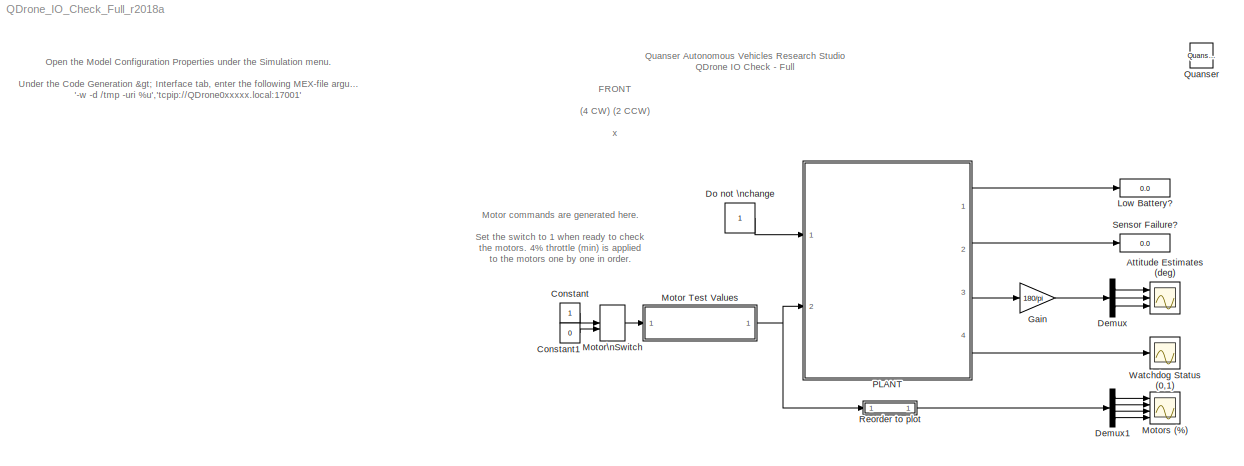
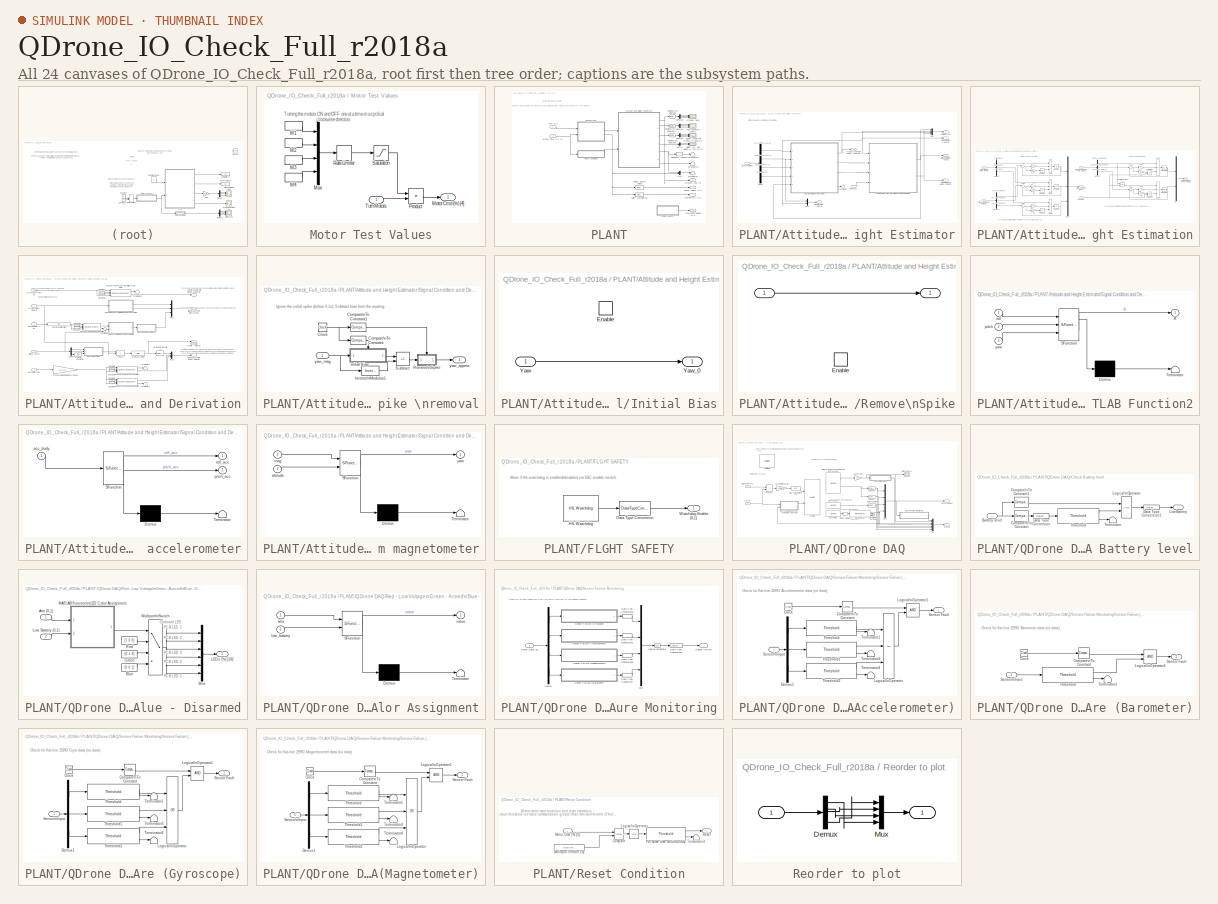
[diagram: thumbnail index - all 24 canvases of the model, root first then tree order]
MODEL QDrone_IO_Check_Full_r2018a
KIND model
CONFIG InitFcn = set_param('QDrone_IO_Check_Full/Motor Switch', 'sw', '0');
BLOCK [Scope] Attitude Estimates (deg)
  Floating = off
  NumInputPorts = 3
  Ports = [3]
  SID = 4941
  ScopeSpecificationString = Simulink.scopes.TimeScopeBlockCfg('CurrentConfiguration', extmgr.ConfigurationSet(extmgr.Configuration('Core','General UI',true),extmgr.Configuration('Core','Source UI',true),extmgr.Configuration('Sources','WiredSimulink',true,'DataLoggingVariableName','ScopeData1'),extmgr.Configuration('Visuals','Time Domain',true,'SerializedDisplays',{struct('MinYLimReal','-90','MaxYLimReal','90','YLabelReal','d...<+2737ch>
BLOCK [Constant] Constant
  SID = 4944
BLOCK [Constant] Constant1
  SID = 4945
  Value = 0
BLOCK [Demux] Demux
  Outputs = 3
  Ports = [1, 3]
  SID = 4960
BLOCK [Demux] Demux1
  Ports = [1, 4]
  SID = 4955
BLOCK [Constant] Do not \nchange
  SID = 4947
BLOCK [Gain] Gain
  Gain = 180/pi
  SID = 4942
BLOCK [Display] Low Battery?
  Decimation = 100
  Ports = [1]
  SID = 4916
BLOCK [SubSystem] Motor Test Values
  Ports = [1, 1]
  RequestExecContextInheritance = off
  SID = 4931
BLOCK [DiscretePulseGenerator] Motor Test Values/M1
  Amplitude = 0.04
  Period = 8
  Ports = [0, 1]
  PulseType = Time based
  PulseWidth = 12.5
  SID = 4932
BLOCK [DiscretePulseGenerator] Motor Test Values/M2
  Amplitude = 0.04
  Period = 8
  PhaseDelay = 6
  Ports = [0, 1]
  PulseType = Time based
  PulseWidth = 12.5
  SID = 4933
BLOCK [DiscretePulseGenerator] Motor Test Values/M3
  Amplitude = 0.04
  Period = 8
  PhaseDelay = 2
  Ports = [0, 1]
  PulseType = Time based
  PulseWidth = 12.5
  SID = 4934
BLOCK [DiscretePulseGenerator] Motor Test Values/M4
  Amplitude = 0.04
  Period = 8
  PhaseDelay = 4
  Ports = [0, 1]
  PulseType = Time based
  PulseWidth = 12.5
  SID = 4935
BLOCK [Outport] Motor Test Values/Motor Cmd (%) [4]
  SID = 4939
  VectorParamsAs1DForOutWhenUnconnected = off
BLOCK [Mux] Motor Test Values/Mux
  DisplayOption = bar
  Ports = [4, 1]
  SID = 4936
BLOCK [Product] Motor Test Values/Product
  Ports = [2, 1]
  SID = 4949
BLOCK [RateLimiter] Motor Test Values/Rate Limiter
  FallingSlewLimit = -0.1
  RisingSlewLimit = 0.1
  SID = 4937
  SampleTimeMode = inherited
BLOCK [Saturate] Motor Test Values/Saturation
  LowerLimit = 0
  SID = 4938
  UpperLimit = 0.1
BLOCK [Inport] Motor Test Values/Turn Motors
  SID = 4962
BLOCK [ManualSwitch] Motor\nSwitch
  SID = 6348
BLOCK [Scope] Motors (%)
  Floating = off
  NumInputPorts = 4
  Ports = [4]
  SID = 4950
  ScopeSpecificationString = Simulink.scopes.TimeScopeBlockCfg('CurrentConfiguration', extmgr.ConfigurationSet(extmgr.Configuration('Core','General UI',true),extmgr.Configuration('Core','Source UI',true),extmgr.Configuration('Sources','WiredSimulink',true,'DataLoggingVariableName','ScopeData2'),extmgr.Configuration('Visuals','Time Domain',true,'SerializedDisplays',{struct('MinYLimReal','-0.005','MaxYLimReal','0.045','YLabelRe...<+3480ch>
BLOCK [SubSystem] PLANT
  Ports = [2, 4]
  RequestExecContextInheritance = off
  SID = 6350
BLOCK [Scope] PLANT/Angular Acceleration\nEstimate (deg//s//s)
  Floating = off
  NumInputPorts = 3
  Ports = [3]
  SID = 6353
  ScopeSpecificationString = Simulink.scopes.TimeScopeBlockCfg('CurrentConfiguration', extmgr.ConfigurationSet(extmgr.Configuration('Core','General UI',true),extmgr.Configuration('Core','Source UI',true),extmgr.Configuration('Sources','WiredSimulink',true,'DataLoggingVariableName','ScopeData5','DataLoggingLimitDataPoints',true,'DataLoggingSaveFormat','Array','DataLoggingDecimation','1','DataLoggingDecimateData',true),extmgr.C...<+2801ch>
BLOCK [Inport] PLANT/Arm (0,1)
  SID = 6352
BLOCK [Scope] PLANT/Attitude (deg)
  Floating = off
  NumInputPorts = 3
  Ports = [3]
  SID = 6354
  ScopeSpecificationString = Simulink.scopes.TimeScopeBlockCfg('CurrentConfiguration', extmgr.ConfigurationSet(extmgr.Configuration('Core','General UI',true),extmgr.Configuration('Core','Source UI',true),extmgr.Configuration('Sources','WiredSimulink',true,'DataLoggingVariableName','ScopeData2','DataLoggingSaveFormat','Array','DataLoggingDecimation','1','DataLoggingDecimateData',true),extmgr.Configuration('Visuals','Time Domai...<+2819ch>
BLOCK [SubSystem] PLANT/Attitude and Height Estimator
  Ports = [2, 6]
  RequestExecContextInheritance = off
  SID = 6355
BLOCK [Outport] PLANT/Attitude and Height Estimator/Angular Acceleration\nEstimates (rad//s//s) [3]
  Port = 3
  SID = 6484
  VectorParamsAs1DForOutWhenUnconnected = off
BLOCK [Outport] PLANT/Attitude and Height Estimator/Attitude Estimates (rad) [3]
  SID = 6482
  VectorParamsAs1DForOutWhenUnconnected = off
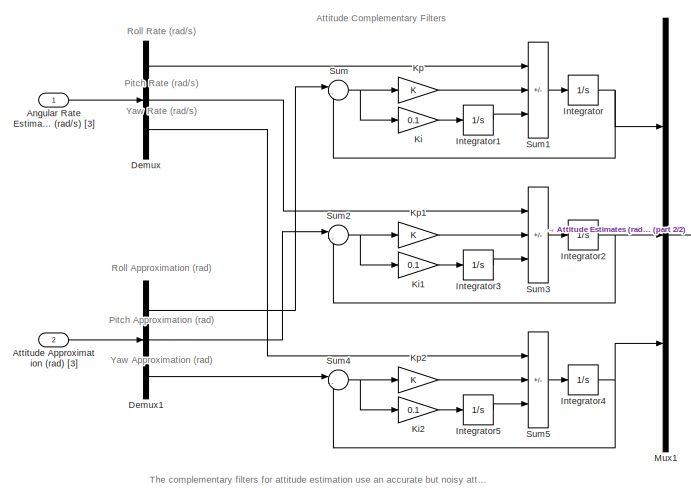
[diagram: PLANT/Attitude and Height Estimator/Complementary Filters for \nAttitude and Height Estimation - part 1/2, left side, full height]
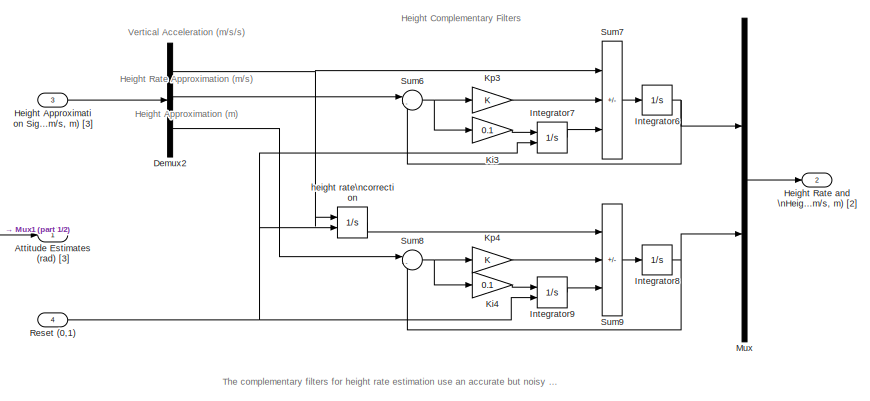
[diagram: PLANT/Attitude and Height Estimator/Complementary Filters for \nAttitude and Height Estimation - part 2/2, right side, full height]
BLOCK [SubSystem] PLANT/Attitude and Height Estimator/Complementary Filters for \nAttitude and Height Estimation
  Ports = [4, 2]
  RequestExecContextInheritance = off
  SID = 6358
BLOCK [Inport] PLANT/Attitude and Height Estimator/Complementary Filters for \nAttitude and Height Estimation/Angular Rate Estimates (rad//s) [3]
  SID = 6359
BLOCK [Inport] PLANT/Attitude and Height Estimator/Complementary Filters for \nAttitude and Height Estimation/Attitude Approximation (rad) [3]
  Port = 2
  SID = 6360
BLOCK [Outport] PLANT/Attitude and Height Estimator/Complementary Filters for \nAttitude and Height Estimation/Attitude Estimates (rad) [3]
  SID = 6399
  VectorParamsAs1DForOutWhenUnconnected = off
BLOCK [Demux] PLANT/Attitude and Height Estimator/Complementary Filters for \nAttitude and Height Estimation/Demux
  Outputs = 3
  Ports = [1, 3]
  SID = 6363
BLOCK [Demux] PLANT/Attitude and Height Estimator/Complementary Filters for \nAttitude and Height Estimation/Demux1
  Outputs = 3
  Ports = [1, 3]
  SID = 6364
BLOCK [Demux] PLANT/Attitude and Height Estimator/Complementary Filters for \nAttitude and Height Estimation/Demux2
  Outputs = 3
  Ports = [1, 3]
  SID = 6365
BLOCK [Inport] PLANT/Attitude and Height Estimator/Complementary Filters for \nAttitude and Height Estimation/Height Approximation Signals (m//s//s, m//s, m) [3]
  Port = 3
  SID = 6361
BLOCK [Outport] PLANT/Attitude and Height Estimator/Complementary Filters for \nAttitude and Height Estimation/Height Rate and \nHeight Estimates (m//s, m) [2]
  Port = 2
  SID = 6400
  VectorParamsAs1DForOutWhenUnconnected = off
BLOCK [Integrator] PLANT/Attitude and Height Estimator/Complementary Filters for \nAttitude and Height Estimation/Integrator
  Ports = [1, 1]
  SID = 6366
BLOCK [Integrator] PLANT/Attitude and Height Estimator/Complementary Filters for \nAttitude and Height Estimation/Integrator1
  Ports = [1, 1]
  SID = 6367
BLOCK [Integrator] PLANT/Attitude and Height Estimator/Complementary Filters for \nAttitude and Height Estimation/Integrator2
  Ports = [1, 1]
  SID = 6368
BLOCK [Integrator] PLANT/Attitude and Height Estimator/Complementary Filters for \nAttitude and Height Estimation/Integrator3
  Ports = [1, 1]
  SID = 6369
BLOCK [Integrator] PLANT/Attitude and Height Estimator/Complementary Filters for \nAttitude and Height Estimation/Integrator4
  Ports = [1, 1]
  SID = 6370
BLOCK [Integrator] PLANT/Attitude and Height Estimator/Complementary Filters for \nAttitude and Height Estimation/Integrator5
  Ports = [1, 1]
  SID = 6371
BLOCK [Integrator] PLANT/Attitude and Height Estimator/Complementary Filters for \nAttitude and Height Estimation/Integrator6
  Ports = [1, 1]
  SID = 6372
BLOCK [Integrator] PLANT/Attitude and Height Estimator/Complementary Filters for \nAttitude and Height Estimation/Integrator7
  ExternalReset = rising
  Ports = [2, 1]
  SID = 6373
BLOCK [Integrator] PLANT/Attitude and Height Estimator/Complementary Filters for \nAttitude and Height Estimation/Integrator8
  Ports = [1, 1]
  SID = 6374
BLOCK [Integrator] PLANT/Attitude and Height Estimator/Complementary Filters for \nAttitude and Height Estimation/Integrator9
  ExternalReset = rising
  Ports = [2, 1]
  SID = 6375
BLOCK [Gain] PLANT/Attitude and Height Estimator/Complementary Filters for \nAttitude and Height Estimation/Ki
  Gain = 0.1
  SID = 6376
BLOCK [Gain] PLANT/Attitude and Height Estimator/Complementary Filters for \nAttitude and Height Estimation/Ki1
  Gain = 0.1
  SID = 6377
BLOCK [Gain] PLANT/Attitude and Height Estimator/Complementary Filters for \nAttitude and Height Estimation/Ki2
  Gain = 0.1
  SID = 6378
BLOCK [Gain] PLANT/Attitude and Height Estimator/Complementary Filters for \nAttitude and Height Estimation/Ki3
  Gain = 0.1
  SID = 6379
BLOCK [Gain] PLANT/Attitude and Height Estimator/Complementary Filters for \nAttitude and Height Estimation/Ki4
  Gain = 0.1
  SID = 6380
BLOCK [Gain] PLANT/Attitude and Height Estimator/Complementary Filters for \nAttitude and Height Estimation/Kp
  SID = 6381
BLOCK [Gain] PLANT/Attitude and Height Estimator/Complementary Filters for \nAttitude and Height Estimation/Kp1
  SID = 6382
BLOCK [Gain] PLANT/Attitude and Height Estimator/Complementary Filters for \nAttitude and Height Estimation/Kp2
  SID = 6383
BLOCK [Gain] PLANT/Attitude and Height Estimator/Complementary Filters for \nAttitude and Height Estimation/Kp3
  SID = 6384
BLOCK [Gain] PLANT/Attitude and Height Estimator/Complementary Filters for \nAttitude and Height Estimation/Kp4
  SID = 6385
BLOCK [Mux] PLANT/Attitude and Height Estimator/Complementary Filters for \nAttitude and Height Estimation/Mux
  DisplayOption = bar
  Inputs = 2
  Ports = [2, 1]
  SID = 6386
BLOCK [Mux] PLANT/Attitude and Height Estimator/Complementary Filters for \nAttitude and Height Estimation/Mux1
  DisplayOption = bar
  Inputs = 3
  Ports = [3, 1]
  SID = 6387
BLOCK [Inport] PLANT/Attitude and Height Estimator/Complementary Filters for \nAttitude and Height Estimation/Reset (0,1)
  Port = 4
  SID = 6362
BLOCK [Sum] PLANT/Attitude and Height Estimator/Complementary Filters for \nAttitude and Height Estimation/Sum
  Inputs = |-+
  Ports = [2, 1]
  SID = 6388
BLOCK [Sum] PLANT/Attitude and Height Estimator/Complementary Filters for \nAttitude and Height Estimation/Sum1
  IconShape = rectangular
  Inputs = +--
  Ports = [3, 1]
  SID = 6389
BLOCK [Sum] PLANT/Attitude and Height Estimator/Complementary Filters for \nAttitude and Height Estimation/Sum2
  Inputs = |-+
  Ports = [2, 1]
  SID = 6390
BLOCK [Sum] PLANT/Attitude and Height Estimator/Complementary Filters for \nAttitude and Height Estimation/Sum3
  IconShape = rectangular
  Inputs = +--
  Ports = [3, 1]
  SID = 6391
BLOCK [Sum] PLANT/Attitude and Height Estimator/Complementary Filters for \nAttitude and Height Estimation/Sum4
  Inputs = |-+
  Ports = [2, 1]
  SID = 6392
BLOCK [Sum] PLANT/Attitude and Height Estimator/Complementary Filters for \nAttitude and Height Estimation/Sum5
  IconShape = rectangular
  Inputs = +--
  Ports = [3, 1]
  SID = 6393
BLOCK [Sum] PLANT/Attitude and Height Estimator/Complementary Filters for \nAttitude and Height Estimation/Sum6
  Inputs = |-+
  Ports = [2, 1]
  SID = 6394
BLOCK [Sum] PLANT/Attitude and Height Estimator/Complementary Filters for \nAttitude and Height Estimation/Sum7
  IconShape = rectangular
  Inputs = +--
  Ports = [3, 1]
  SID = 6395
BLOCK [Sum] PLANT/Attitude and Height Estimator/Complementary Filters for \nAttitude and Height Estimation/Sum8
  Inputs = |-+
  Ports = [2, 1]
  SID = 6396
BLOCK [Sum] PLANT/Attitude and Height Estimator/Complementary Filters for \nAttitude and Height Estimation/Sum9
  IconShape = rectangular
  Inputs = +--
  Ports = [3, 1]
  SID = 6397
BLOCK [Integrator] PLANT/Attitude and Height Estimator/Complementary Filters for \nAttitude and Height Estimation/height rate\ncorrection
  ExternalReset = rising
  Ports = [2, 1]
  SID = 6398
BLOCK [Demux] PLANT/Attitude and Height Estimator/Demux
  Outputs = [3 3 3 1]
  Ports = [1, 4]
  SID = 6419
BLOCK [Outport] PLANT/Attitude and Height Estimator/Estimator Log
  Port = 5
  SID = 6486
  VectorParamsAs1DForOutWhenUnconnected = off
BLOCK [Outport] PLANT/Attitude and Height Estimator/Height Rate and \nHeight Estimates (m//s, m) [2]
  Port = 4
  SID = 6485
  VectorParamsAs1DForOutWhenUnconnected = off
BLOCK [Outport] PLANT/Attitude and Height Estimator/IMU Data (m//s//s, rad//s) [6]
  Port = 6
  SID = 6487
  VectorParamsAs1DForOutWhenUnconnected = off
BLOCK [Mux] PLANT/Attitude and Height Estimator/Mux
  DisplayOption = bar
  Inputs = [3 3 3 2]
  Ports = [4, 1]
  SID = 6420
BLOCK [Mux] PLANT/Attitude and Height Estimator/Mux1
  DisplayOption = bar
  Inputs = 2
  Ports = [2, 1]
  SID = 6421
BLOCK [Outport] PLANT/Attitude and Height Estimator/Rate Estimates (rad//s) [3]
  Port = 2
  SID = 6483
  VectorParamsAs1DForOutWhenUnconnected = off
BLOCK [Inport] PLANT/Attitude and Height Estimator/Reset (0,1)
  Port = 2
  SID = 6357
BLOCK [Inport] PLANT/Attitude and Height Estimator/Sensor Data [10]
  SID = 6356
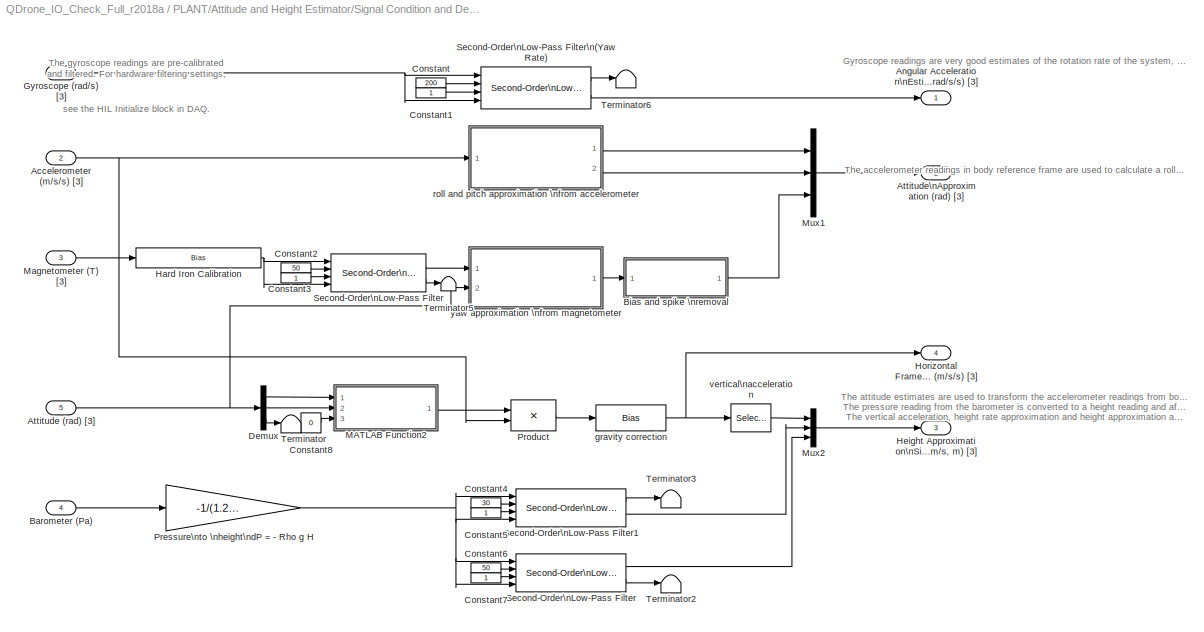
BLOCK [SubSystem] PLANT/Attitude and Height Estimator/Signal Condition and Derivation
  Ports = [5, 4]
  RequestExecContextInheritance = off
  SID = 6422
BLOCK [Inport] PLANT/Attitude and Height Estimator/Signal Condition and Derivation/Accelerometer (m//s//s) [3]
  Port = 2
  SID = 6424
BLOCK [Outport] PLANT/Attitude and Height Estimator/Signal Condition and Derivation/Angular Acceleration\nEstimates (rad//s//s) [3]
  SID = 6473
  VectorParamsAs1DForOutWhenUnconnected = off
BLOCK [Inport] PLANT/Attitude and Height Estimator/Signal Condition and Derivation/Attitude (rad) [3]
  Port = 5
  SID = 6427
BLOCK [Outport] PLANT/Attitude and Height Estimator/Signal Condition and Derivation/Attitude\nApproximation (rad) [3]
  Port = 2
  SID = 6474
  VectorParamsAs1DForOutWhenUnconnected = off
BLOCK [Inport] PLANT/Attitude and Height Estimator/Signal Condition and Derivation/Barometer (Pa)
  Port = 4
  SID = 6426
BLOCK [SubSystem] PLANT/Attitude and Height Estimator/Signal Condition and Derivation/Bias and spike \nremoval
  Ports = [1, 1]
  RequestExecContextInheritance = off
  SID = 6428
BLOCK [Clock] PLANT/Attitude and Height Estimator/Signal Condition and Derivation/Bias and spike \nremoval/Clock
  SID = 6430
BLOCK [Reference] PLANT/Attitude and Height Estimator/Signal Condition and Derivation/Bias and spike \nremoval/Compare\nTo Constant  REF=simulink/Logic and Bit\nOperations/Compare\nTo Constant
  OutDataTypeStr = boolean
  Ports = [1, 1]
  RTWMemSecDataConstants = Inherit from model
  RTWMemSecDataInternal = Inherit from model
  RTWMemSecDataParameters = Inherit from model
  RTWMemSecFuncExecute = Inherit from model
  RTWMemSecFuncInitTerm = Inherit from model
  SID = 6431
  SourceBlock = simulink/Logic and Bit\nOperations/Compare\nTo Constant
  SourceProductBaseCode = SL
  SourceType = Compare To Constant
  ZeroCross = on
  const = 1.0
  relop = <=
BLOCK [Reference] PLANT/Attitude and Height Estimator/Signal Condition and Derivation/Bias and spike \nremoval/Compare\nTo Constant1  REF=simulink/Logic and Bit\nOperations/Compare\nTo Constant
  OutDataTypeStr = boolean
  Ports = [1, 1]
  RTWMemSecDataConstants = Inherit from model
  RTWMemSecDataInternal = Inherit from model
  RTWMemSecDataParameters = Inherit from model
  RTWMemSecFuncExecute = Inherit from model
  RTWMemSecFuncInitTerm = Inherit from model
  SID = 6432
  SourceBlock = simulink/Logic and Bit\nOperations/Compare\nTo Constant
  SourceProductBaseCode = SL
  SourceType = Compare To Constant
  ZeroCross = on
  const = 0.1
  relop = >=
BLOCK [SubSystem] PLANT/Attitude and Height Estimator/Signal Condition and Derivation/Bias and spike \nremoval/Initial Bias
  Ports = [1, 1, 1]
  RequestExecContextInheritance = off
  SID = 6433
  TreatAsAtomicUnit = on
BLOCK [EnablePort] PLANT/Attitude and Height Estimator/Signal Condition and Derivation/Bias and spike \nremoval/Initial Bias/Enable
  Ports = []
  SID = 6435
BLOCK [Inport] PLANT/Attitude and Height Estimator/Signal Condition and Derivation/Bias and spike \nremoval/Initial Bias/Yaw
  SID = 6434
BLOCK [Outport] PLANT/Attitude and Height Estimator/Signal Condition and Derivation/Bias and spike \nremoval/Initial Bias/Yaw_0
  InitialOutput = [0]
  SID = 6436
  VectorParamsAs1DForOutWhenUnconnected = off
BLOCK [Reference] PLANT/Attitude and Height Estimator/Signal Condition and Derivation/Bias and spike \nremoval/Inverse\nModulus1  REF=quarc_library/Discontinuities/Inverse\nModulus
  MultiThreadCoSim = auto
  Ports = [1, 1]
  SID = 6437
  SourceBlock = quarc_library/Discontinuities/Inverse\nModulus
  SourceProductName = The database <userpath><path> is locked, or a table in the database is locked. (database is locked)
  SourceType = Inverse Modulus
  max_x = Inf
  min_x = -Inf
  modulus = 2*pi
  output_derivative = off
  output_revolutions = off
BLOCK [SubSystem] PLANT/Attitude and Height Estimator/Signal Condition and Derivation/Bias and spike \nremoval/Remove\nSpike
  Ports = [1, 1, 1]
  RequestExecContextInheritance = off
  SID = 6438
  TreatAsAtomicUnit = on
BLOCK [Inport] PLANT/Attitude and Height Estimator/Signal Condition and Derivation/Bias and spike \nremoval/Remove\nSpike/ 
  SID = 6439
BLOCK [Outport] PLANT/Attitude and Height Estimator/Signal Condition and Derivation/Bias and spike \nremoval/Remove\nSpike/  
  InitialOutput = [0]
  SID = 6441
  VectorParamsAs1DForOutWhenUnconnected = off
BLOCK [EnablePort] PLANT/Attitude and Height Estimator/Signal Condition and Derivation/Bias and spike \nremoval/Remove\nSpike/Enable
  Ports = []
  SID = 6440
BLOCK [Sum] PLANT/Attitude and Height Estimator/Signal Condition and Derivation/Bias and spike \nremoval/Subtract
  IconShape = rectangular
  Inputs = -+
  Ports = [2, 1]
  SID = 6442
BLOCK [Outport] PLANT/Attitude and Height Estimator/Signal Condition and Derivation/Bias and spike \nremoval/yaw_approx
  SID = 6443
  VectorParamsAs1DForOutWhenUnconnected = off
BLOCK [Inport] PLANT/Attitude and Height Estimator/Signal Condition and Derivation/Bias and spike \nremoval/yaw_mag
  SID = 6429
BLOCK [Constant] PLANT/Attitude and Height Estimator/Signal Condition and Derivation/Constant
  SID = 6444
  Value = 200
BLOCK [Constant] PLANT/Attitude and Height Estimator/Signal Condition and Derivation/Constant1
  SID = 6445
BLOCK [Constant] PLANT/Attitude and Height Estimator/Signal Condition and Derivation/Constant2
  SID = 6446
  Value = 50
BLOCK [Constant] PLANT/Attitude and Height Estimator/Signal Condition and Derivation/Constant3
  SID = 6447
BLOCK [Constant] PLANT/Attitude and Height Estimator/Signal Condition and Derivation/Constant4
  SID = 6448
  Value = 30
BLOCK [Constant] PLANT/Attitude and Height Estimator/Signal Condition and Derivation/Constant5
  SID = 6449
BLOCK [Constant] PLANT/Attitude and Height Estimator/Signal Condition and Derivation/Constant6
  SID = 6450
  Value = 50
BLOCK [Constant] PLANT/Attitude and Height Estimator/Signal Condition and Derivation/Constant7
  SID = 6451
BLOCK [Constant] PLANT/Attitude and Height Estimator/Signal Condition and Derivation/Constant8
  SID = 6452
  Value = 0
BLOCK [Demux] PLANT/Attitude and Height Estimator/Signal Condition and Derivation/Demux
  Outputs = 3
  Ports = [1, 3]
  SID = 6453
BLOCK [Inport] PLANT/Attitude and Height Estimator/Signal Condition and Derivation/Gyroscope (rad//s) [3]
  SID = 6423
BLOCK [Bias] PLANT/Attitude and Height Estimator/Signal Condition and Derivation/Hard Iron Calibration
  Bias = -0.0001*[0.2256 -0.1069 0.0275]
  SID = 6454
  SaturateOnIntegerOverflow = off
BLOCK [Outport] PLANT/Attitude and Height Estimator/Signal Condition and Derivation/Height Approximation\nSignals (m//s//s, m//s, m) [3]
  Port = 3
  SID = 6475
  VectorParamsAs1DForOutWhenUnconnected = off
BLOCK [Outport] PLANT/Attitude and Height Estimator/Signal Condition and Derivation/Horizontal Frame\nAccelerations (m//s//s) [3]
  Port = 4
  SID = 6476
  VectorParamsAs1DForOutWhenUnconnected = off
BLOCK [SubSystem] PLANT/Attitude and Height Estimator/Signal Condition and Derivation/MATLAB Function2
  ErrorFcn = Stateflow.Translate.translate
  PermitHierarchicalResolution = ExplicitOnly
  Ports = [3, 1]
  RequestExecContextInheritance = off
  SFBlockType = MATLAB Function
  SID = 6455
  TreatAsAtomicUnit = on
BLOCK [Demux] PLANT/Attitude and Height Estimator/Signal Condition and Derivation/MATLAB Function2/ Demux 
  Outputs = 1
  Ports = [1, 1]
  SID = 6455::34
BLOCK [S-Function] PLANT/Attitude and Height Estimator/Signal Condition and Derivation/MATLAB Function2/ SFunction 
  EnableBusSupport = off
  FunctionName = sf_sfun
  PortCounts = [3 2]
  Ports = [3, 2]
  SFcnIsStateOwnerBlock = off
  SFunctionDeploymentMode = off
  SID = 6455::33
  Tag = Stateflow S-Function QDrone_IO_Check_Full_r2018a 12
BLOCK [Terminator] PLANT/Attitude and Height Estimator/Signal Condition and Derivation/MATLAB Function2/ Terminator 
  SID = 6455::35
BLOCK [Outport] PLANT/Attitude and Height Estimator/Signal Condition and Derivation/MATLAB Function2/R
  SID = 6455::5
  VectorParamsAs1DForOutWhenUnconnected = off
BLOCK [Inport] PLANT/Attitude and Height Estimator/Signal Condition and Derivation/MATLAB Function2/pitch
  Port = 2
  SID = 6455::22
BLOCK [Inport] PLANT/Attitude and Height Estimator/Signal Condition and Derivation/MATLAB Function2/roll
  SID = 6455::1
BLOCK [Inport] PLANT/Attitude and Height Estimator/Signal Condition and Derivation/MATLAB Function2/yaw
  Port = 3
  SID = 6455::23
BLOCK [Inport] PLANT/Attitude and Height Estimator/Signal Condition and Derivation/Magnetometer (T) [3]
  Port = 3
  SID = 6425
BLOCK [Mux] PLANT/Attitude and Height Estimator/Signal Condition and Derivation/Mux1
  DisplayOption = bar
  Inputs = 3
  Ports = [3, 1]
  SID = 6456
BLOCK [Mux] PLANT/Attitude and Height Estimator/Signal Condition and Derivation/Mux2
  DisplayOption = bar
  Inputs = 3
  Ports = [3, 1]
  SID = 6457
BLOCK [Gain] PLANT/Attitude and Height Estimator/Signal Condition and Derivation/Pressure\nto \nheight\ndP = - Rho g H
  Gain = -1/(1.225*9.81)
  SID = 6458
BLOCK [Product] PLANT/Attitude and Height Estimator/Signal Condition and Derivation/Product
  Multiplication = Matrix(*)
  Ports = [2, 1]
  SID = 6459
BLOCK [Reference] PLANT/Attitude and Height Estimator/Signal Condition and Derivation/Second-Order\nLow-Pass Filter  REF=quarc_library/Continuous/Second-Order\nLow-Pass Filter
  Ports = [4, 2]
  RTWMemSecDataConstants = Inherit from model
  RTWMemSecDataInternal = Inherit from model
  RTWMemSecDataParameters = Inherit from model
  RTWMemSecFuncExecute = Inherit from model
  RTWMemSecFuncInitTerm = Inherit from model
  SID = 6460
  SourceBlock = quarc_library/Continuous/Second-Order\nLow-Pass Filter
  SourceProductName = The database <userpath><path> is locked, or a table in the database is locked. (database is locked)
  SourceType = Second-Order Low-Pass Filter
  input_init = 0
  input_width = 50
  input_zeta = 1
  params_source = External (input ports)
BLOCK [Reference] PLANT/Attitude and Height Estimator/Signal Condition and Derivation/Second-Order\nLow-Pass Filter   REF=quarc_library/Continuous/Second-Order\nLow-Pass Filter
  Ports = [4, 2]
  RTWMemSecDataConstants = Inherit from model
  RTWMemSecDataInternal = Inherit from model
  RTWMemSecDataParameters = Inherit from model
  RTWMemSecFuncExecute = Inherit from model
  RTWMemSecFuncInitTerm = Inherit from model
  SID = 6462
  SourceBlock = quarc_library/Continuous/Second-Order\nLow-Pass Filter
  SourceProductName = The database <userpath><path> is locked, or a table in the database is locked. (database is locked)
  SourceType = Second-Order Low-Pass Filter
  input_init = 0
  input_width = 50
  input_zeta = 1
  params_source = External (input ports)
BLOCK [Reference] PLANT/Attitude and Height Estimator/Signal Condition and Derivation/Second-Order\nLow-Pass Filter1  REF=quarc_library/Continuous/Second-Order\nLow-Pass Filter
  Ports = [4, 2]
  RTWMemSecDataConstants = Inherit from model
  RTWMemSecDataInternal = Inherit from model
  RTWMemSecDataParameters = Inherit from model
  RTWMemSecFuncExecute = Inherit from model
  RTWMemSecFuncInitTerm = Inherit from model
  SID = 6463
  SourceBlock = quarc_library/Continuous/Second-Order\nLow-Pass Filter
  SourceProductName = The database <userpath><path> is locked, or a table in the database is locked. (database is locked)
  SourceType = Second-Order Low-Pass Filter
  input_init = 0
  input_width = 30
  input_zeta = 1
  params_source = External (input ports)
BLOCK [Reference] PLANT/Attitude and Height Estimator/Signal Condition and Derivation/Second-Order\nLow-Pass Filter\n(Yaw Rate)  REF=quarc_library/Continuous/Second-Order\nLow-Pass Filter
  Ports = [4, 2]
  RTWMemSecDataConstants = Inherit from model
  RTWMemSecDataInternal = Inherit from model
  RTWMemSecDataParameters = Inherit from model
  RTWMemSecFuncExecute = Inherit from model
  RTWMemSecFuncInitTerm = Inherit from model
  SID = 6461
  SourceBlock = quarc_library/Continuous/Second-Order\nLow-Pass Filter
  SourceProductName = The database <userpath><path> is locked, or a table in the database is locked. (database is locked)
  SourceType = Second-Order Low-Pass Filter
  input_init = 0
  input_width = 200
  input_zeta = 1
  params_source = External (input ports)
BLOCK [Terminator] PLANT/Attitude and Height Estimator/Signal Condition and Derivation/Terminator
  SID = 6464
BLOCK [Terminator] PLANT/Attitude and Height Estimator/Signal Condition and Derivation/Terminator2
  SID = 6465
BLOCK [Terminator] PLANT/Attitude and Height Estimator/Signal Condition and Derivation/Terminator3
  SID = 6466
BLOCK [Terminator] PLANT/Attitude and Height Estimator/Signal Condition and Derivation/Terminator5
  SID = 6467
BLOCK [Terminator] PLANT/Attitude and Height Estimator/Signal Condition and Derivation/Terminator6
  SID = 6468
BLOCK [Bias] PLANT/Attitude and Height Estimator/Signal Condition and Derivation/gravity correction
  Bias = [0 0 -9.81]
  SID = 6469
  SaturateOnIntegerOverflow = off
BLOCK [SubSystem] PLANT/Attitude and Height Estimator/Signal Condition and Derivation/roll and pitch approximation \nfrom accelerometer
  ErrorFcn = Stateflow.Translate.translate
  PermitHierarchicalResolution = ExplicitOnly
  Ports = [1, 2]
  RequestExecContextInheritance = off
  SFBlockType = MATLAB Function
  SID = 6470
  TreatAsAtomicUnit = on
BLOCK [Demux] PLANT/Attitude and Height Estimator/Signal Condition and Derivation/roll and pitch approximation \nfrom accelerometer/ Demux 
  Outputs = 1
  Ports = [1, 1]
  SID = 6470::3274
BLOCK [S-Function] PLANT/Attitude and Height Estimator/Signal Condition and Derivation/roll and pitch approximation \nfrom accelerometer/ SFunction 
  EnableBusSupport = off
  FunctionName = sf_sfun
  PortCounts = [1 3]
  Ports = [1, 3]
  SFcnIsStateOwnerBlock = off
  SFunctionDeploymentMode = off
  SID = 6470::3273
  Tag = Stateflow S-Function QDrone_IO_Check_Full_r2018a 1
BLOCK [Terminator] PLANT/Attitude and Height Estimator/Signal Condition and Derivation/roll and pitch approximation \nfrom accelerometer/ Terminator 
  SID = 6470::3275
BLOCK [Inport] PLANT/Attitude and Height Estimator/Signal Condition and Derivation/roll and pitch approximation \nfrom accelerometer/acc_body
  SID = 6470::1
BLOCK [Outport] PLANT/Attitude and Height Estimator/Signal Condition and Derivation/roll and pitch approximation \nfrom accelerometer/pitch_acc
  Port = 2
  SID = 6470::6
  VectorParamsAs1DForOutWhenUnconnected = off
BLOCK [Outport] PLANT/Attitude and Height Estimator/Signal Condition and Derivation/roll and pitch approximation \nfrom accelerometer/roll_acc
  SID = 6470::5
  VectorParamsAs1DForOutWhenUnconnected = off
BLOCK [Selector] PLANT/Attitude and Height Estimator/Signal Condition and Derivation/vertical\nacceleration
  IndexOptions = Index vector (dialog)
  Indices = [3]
  InputPortWidth = 3
  OutputSizes = 1
  Ports = [1, 1]
  SID = 6471
BLOCK [SubSystem] PLANT/Attitude and Height Estimator/Signal Condition and Derivation/yaw approximation \nfrom magnetometer
  ErrorFcn = Stateflow.Translate.translate
  PermitHierarchicalResolution = ExplicitOnly
  Ports = [2, 1]
  RequestExecContextInheritance = off
  SFBlockType = MATLAB Function
  SID = 6472
  TreatAsAtomicUnit = on
BLOCK [Demux] PLANT/Attitude and Height Estimator/Signal Condition and Derivation/yaw approximation \nfrom magnetometer/ Demux 
  Outputs = 1
  Ports = [1, 1]
  SID = 6472::34
BLOCK [S-Function] PLANT/Attitude and Height Estimator/Signal Condition and Derivation/yaw approximation \nfrom magnetometer/ SFunction 
  EnableBusSupport = off
  FunctionName = sf_sfun
  PortCounts = [2 2]
  Ports = [2, 2]
  SFcnIsStateOwnerBlock = off
  SFunctionDeploymentMode = off
  SID = 6472::33
  Tag = Stateflow S-Function QDrone_IO_Check_Full_r2018a 11
BLOCK [Terminator] PLANT/Attitude and Height Estimator/Signal Condition and Derivation/yaw approximation \nfrom magnetometer/ Terminator 
  SID = 6472::35
BLOCK [Inport] PLANT/Attitude and Height Estimator/Signal Condition and Derivation/yaw approximation \nfrom magnetometer/attitude
  Port = 2
  SID = 6472::22
BLOCK [Inport] PLANT/Attitude and Height Estimator/Signal Condition and Derivation/yaw approximation \nfrom magnetometer/mag
  SID = 6472::1
BLOCK [Outport] PLANT/Attitude and Height Estimator/Signal Condition and Derivation/yaw approximation \nfrom magnetometer/yaw
  SID = 6472::5
  VectorParamsAs1DForOutWhenUnconnected = off
BLOCK [Terminator] PLANT/Attitude and Height Estimator/Terminator
  SID = 6481
BLOCK [Outport] PLANT/Atttiude (rad) [3]
  Port = 3
  SID = 6628
  VectorParamsAs1DForOutWhenUnconnected = off
BLOCK [Demux] PLANT/Demux
  Outputs = 2
  Ports = [1, 2]
  SID = 6493
BLOCK [Demux] PLANT/Demux1
  Outputs = 3
  Ports = [1, 3]
  SID = 6494
BLOCK [Demux] PLANT/Demux3
  Outputs = 3
  Ports = [1, 3]
  SID = 6495
BLOCK [Demux] PLANT/Demux5
  Outputs = 3
  Ports = [1, 3]
  SID = 6496
BLOCK [SubSystem] PLANT/FLGHT SAFETY
  Ports = [0, 1]
  RequestExecContextInheritance = off
  SID = 6662
BLOCK [DataTypeConversion] PLANT/FLGHT SAFETY/Data Type Conversion
  OutDataTypeStr = boolean
  RndMeth = Floor
  SID = 6667
  SaturateOnIntegerOverflow = off
BLOCK [Reference] PLANT/FLGHT SAFETY/HIL Watchdog  REF=quarc_library/Data Acquisition/Generic/Watchdog/HIL Watchdog
  AttributesFormatString = (%<object_name>)
  MultiThreadCoSim = auto
  Ports = [0, 1]
  SID = 6665
  SourceBlock = quarc_library/Data Acquisition/Generic/Watchdog/HIL Watchdog
  SourceProductName = QUARC Targets
  SourceType = HIL Watchdog
  UserData = DataTag1
  UserDataPersistent = on
  active = off
  object_name = HIL-1
  sample_time = qc_get_step_size
  timeout = 0.1
BLOCK [Outport] PLANT/FLGHT SAFETY/Watchdog Enable (0,1)
  SID = 6664
  VectorParamsAs1DForOutWhenUnconnected = off
BLOCK [Selector] PLANT/Feedback \nSelector
  IndexOptions = Index vector (dialog)
  Indices = [1:9]
  InputPortWidth = 11
  OutputSizes = 1
  Ports = [1, 1]
  SID = 6497
BLOCK [Scope] PLANT/Height (m) and Height\nRate Estimate (m//s)
  Floating = off
  NumInputPorts = 2
  Ports = [2]
  SID = 6498
  ScopeSpecificationString = Simulink.scopes.TimeScopeBlockCfg('CurrentConfiguration', extmgr.ConfigurationSet(extmgr.Configuration('Core','General UI',true),extmgr.Configuration('Core','Source UI',true),extmgr.Configuration('Sources','WiredSimulink',true,'DataLoggingSaveFormat','Array','DataLoggingDecimation','1','DataLoggingDecimateData',true,'DataLoggingVariableName','ScopeData4'),extmgr.Configuration('Visuals','Time Domai...<+2158ch>
BLOCK [Outport] PLANT/Low Battery (0,1)
  SID = 6626
  VectorParamsAs1DForOutWhenUnconnected = off
BLOCK [Inport] PLANT/Motor Cmd (%) [4]
  Port = 2
  SID = 6351
BLOCK [Mux] PLANT/Mux
  DisplayOption = bar
  Inputs = [11 13]
  Ports = [2, 1]
  SID = 6610
BLOCK [SubSystem] PLANT/QDrone DAQ
  Ports = [2, 2]
  RequestExecContextInheritance = off
  SID = 6499
BLOCK [Inport] PLANT/QDrone DAQ/Arm (0,1)
  SID = 6500
BLOCK [Reference] PLANT/QDrone DAQ/Barometer  REF=quarc_library/Data Acquisition/Generic/Immediate I//O/HIL Read
  AttributesFormatString = (%<object_name>)
  MultiThreadCoSim = auto
  Ports = [0, 1]
  Priority = 1
  SID = 6502
  SourceBlock = quarc_library/Data Acquisition/Generic/Immediate I//O/HIL Read
  SourceProductName = The database <userpath><path> is locked, or a table in the database is locked. (database is locked)
  SourceType = HIL Read
  UserData = DataTag2
  UserDataPersistent = on
  active = on
  analog_channels = []
  data_type_mode = Inherit via back propagation
  digital_channels = []
  digital_data_type = boolean
  encoder_channels = []
  encoder_data_type = double
  object_name = HIL-1
  other_channels = [9000]
  sample_time = qc_get_step_size*25
  vector_output = on
BLOCK [Reference] PLANT/QDrone DAQ/Battery Level, \nAccelrometer and \nGyroscope  REF=quarc_library/Data Acquisition/Generic/Immediate I//O/HIL Read
  AttributesFormatString = (%<object_name>)
  MultiThreadCoSim = auto
  Ports = [0, 2]
  Priority = 1
  SID = 6503
  SourceBlock = quarc_library/Data Acquisition/Generic/Immediate I//O/HIL Read
  SourceProductName = The database <userpath><path> is locked, or a table in the database is locked. (database is locked)
  SourceType = HIL Read
  UserData = DataTag3
  UserDataPersistent = on
  active = on
  analog_channels = [4]
  data_type_mode = Inherit via back propagation
  digital_channels = []
  digital_data_type = boolean
  encoder_channels = []
  encoder_data_type = double
  object_name = HIL-1
  other_channels = [3000:3002 4000:4002]
  sample_time = qc_get_step_size
  vector_output = on
BLOCK [Scope] PLANT/QDrone DAQ/Battery level  (V)
  Floating = off
  NumInputPorts = 1
  Ports = [1]
  SID = 6504
  ScopeSpecificationString = Simulink.scopes.TimeScopeBlockCfg('CurrentConfiguration', extmgr.ConfigurationSet(extmgr.Configuration('Core','General UI',true),extmgr.Configuration('Core','Source UI',true),extmgr.Configuration('Sources','WiredSimulink',true,'DataLoggingSaveFormat','Array','DataLoggingDecimation','1','DataLoggingDecimateData',true,'DataLoggingVariableName','ScopeData3'),extmgr.Configuration('Visuals','Time Domai...<+1606ch>
BLOCK [Bias] PLANT/QDrone DAQ/Bias - Pulse \nOffset (%)
  Bias = 125e-6
  SID = 6505
  SaturateOnIntegerOverflow = off
BLOCK [Reference] PLANT/QDrone DAQ/Bias Removal  REF=quarc_library/Discrete/Bias Removal
  Ports = [1, 3]
  RTWMemSecDataConstants = Inherit from model
  RTWMemSecDataInternal = Inherit from model
  RTWMemSecDataParameters = Inherit from model
  RTWMemSecFuncExecute = Inherit from model
  RTWMemSecFuncInitTerm = Inherit from model
  SID = 6506
  SourceBlock = quarc_library/Discrete/Bias Removal
  SourceProductName = QUARC Targets
  SourceType = Bias Removal
  end_time = 2
  sample_time = qc_get_step_size
  start_time = 0
  switch_id = X
BLOCK [SubSystem] PLANT/QDrone DAQ/Check Battery level
  Ports = [1, 1]
  RequestExecContextInheritance = off
  SID = 6507
BLOCK [Inport] PLANT/QDrone DAQ/Check Battery level/Battery level
  SID = 6508
BLOCK [Reference] PLANT/QDrone DAQ/Check Battery level/Compare\nTo Constant  REF=simulink/Logic and Bit\nOperations/Compare\nTo Constant
  OutDataTypeStr = boolean
  Ports = [1, 1]
  RTWMemSecDataConstants = Inherit from model
  RTWMemSecDataInternal = Inherit from model
  RTWMemSecDataParameters = Inherit from model
  RTWMemSecFuncExecute = Inherit from model
  RTWMemSecFuncInitTerm = Inherit from model
  SID = 6509
  SourceBlock = simulink/Logic and Bit\nOperations/Compare\nTo Constant
  SourceProductBaseCode = SL
  SourceType = Compare To Constant
  ZeroCross = on
  const = 10.5
  relop = <=
BLOCK [Reference] PLANT/QDrone DAQ/Check Battery level/Compare\nTo Constant1  REF=simulink/Logic and Bit\nOperations/Compare\nTo Constant
  OutDataTypeStr = boolean
  Ports = [1, 1]
  RTWMemSecDataConstants = Inherit from model
  RTWMemSecDataInternal = Inherit from model
  RTWMemSecDataParameters = Inherit from model
  RTWMemSecFuncExecute = Inherit from model
  RTWMemSecFuncInitTerm = Inherit from model
  SID = 6510
  SourceBlock = simulink/Logic and Bit\nOperations/Compare\nTo Constant
  SourceProductBaseCode = SL
  SourceType = Compare To Constant
  ZeroCross = on
  const = 0.5
  relop = >
BLOCK [DataTypeConversion] PLANT/QDrone DAQ/Check Battery level/Data Type Conversion
  RndMeth = Floor
  SID = 6511
  SaturateOnIntegerOverflow = off
BLOCK [DataTypeConversion] PLANT/QDrone DAQ/Check Battery level/Data Type Conversion1
  RndMeth = Floor
  SID = 6512
  SaturateOnIntegerOverflow = off
BLOCK [Logic] PLANT/QDrone DAQ/Check Battery level/Logical\nOperator
  AllPortsSameDT = off
  OutDataTypeStr = boolean
  Ports = [2, 1]
  SID = 6513
BLOCK [Outport] PLANT/QDrone DAQ/Check Battery level/Low Battery
  SID = 6516
  VectorParamsAs1DForOutWhenUnconnected = off
BLOCK [Terminator] PLANT/QDrone DAQ/Check Battery level/Terminator
  SID = 6514
BLOCK [Reference] PLANT/QDrone DAQ/Check Battery level/Threshold  REF=quarc_library/Discontinuities/Threshold
  Ports = [1, 2]
  RTWMemSecDataConstants = Inherit from model
  RTWMemSecDataInternal = Inherit from model
  RTWMemSecDataParameters = Inherit from model
  RTWMemSecFuncExecute = Inherit from model
  RTWMemSecFuncInitTerm = Inherit from model
  SID = 6515
  SourceBlock = quarc_library/Discontinuities/Threshold
  SourceProductName = The database <userpath><path> is locked, or a table in the database is locked. (database is locked)
  SourceType = Threshold
  duration = 0.1
  operator = >=
  param_src = Specify via dialog
  threshold = 0.5
BLOCK [Gain] PLANT/QDrone DAQ/Conversion
  Gain = 11.2
  SID = 6517
BLOCK [Outport] PLANT/QDrone DAQ/DAQ Log
  Port = 2
  SID = 6605
  VectorParamsAs1DForOutWhenUnconnected = off
BLOCK [Reference] PLANT/QDrone DAQ/HIL Initialize  REF=quarc_library/Data Acquisition/Generic/Configuration/HIL Initialize
  AttributesFormatString = %<object_name> (%<board_type>-%<board_number>)
  MultiThreadCoSim = auto
  Ports = []
  SID = 6520
  SourceBlock = quarc_library/Data Acquisition/Generic/Configuration/HIL Initialize
  SourceProductName = The database <userpath><path> is locked, or a table in the database is locked. (database is locked)
  SourceType = HIL Initialize
  UserData = DataTag4
  UserDataPersistent = on
  active = on
  analog_input_channels = [0:4]
  analog_input_configurations = []
  analog_input_maximums = [3.3]
  analog_input_minimums = [0]
  analog_output_channels = []
  analog_output_maximums = []
  analog_output_minimums = []
  board_number = 0
  board_options = gyro_fs=2000;gyro_rate=1000;gyro_os=4;accel_fs=16;accel_rate=400;accel_os=4;baro_os=4096
  board_type = qdrone
  clock_modes = []
  digital_input_channels = []
  digital_output_channels = [5:7 9:23]
  digital_output_configuration = []
  encoder_channels = [0:2]
  encoder_filter_frequency = 50e6/1
  exclusive = off
  final_analog_outputs = []
  final_digital_outputs = [0]
  final_other_outputs = []
  final_pwm_outputs = [0]
  hardware_clocks = []
  initial_analog_outputs = []
  initial_clock_frequencies = []
  initial_digital_outputs = [0]
  initial_encoder_counts = [0]
  initial_other_outputs = []
  initial_pwm_outputs = [0]
  object_name = HIL-1
  other_output_channels = []
  pwm_alignment = [0]
  pwm_channels = [0:3]
  pwm_configuration = [0]
  pwm_frequency = 2000
  pwm_leading_deadband = []
  pwm_modes = [4]
  pwm_polarity = [1]
  pwm_trailing_deadband = []
  quadrature = [4]
  set_analog_input_params_at_start = off
  set_analog_input_params_at_switch_in = off
  set_analog_output_params_at_start = off
  set_analog_output_params_at_switch_in = off
  set_analog_outputs_at_start = off
  set_analog_outputs_at_switch_in = off
  set_analog_outputs_at_switch_out = off
  set_analog_outputs_at_terminate = off
  set_analog_outputs_on_watchdog = off
  set_clock_frequencies_at_start = off
  set_clock_frequencies_at_switch_in = off
  set_clock_params_at_start = off
  set_clock_params_at_switch_in = off
  set_digital_output_params_at_start = off
  set_digital_output_params_at_switch_in = off
  set_digital_outputs_at_start = on
  set_digital_outputs_at_switch_in = off
  set_digital_outputs_at_switch_out = off
  set_digital_outputs_at_terminate = on
  set_digital_outputs_on_watchdog = off
  set_encoder_counts_at_start = on
  set_encoder_counts_at_switch_in = off
  set_encoder_params_at_start = on
  set_encoder_params_at_switch_in = off
  set_other_outputs_at_start = off
  set_other_outputs_at_switch_in = off
  set_other_outputs_at_switch_out = off
  set_other_outputs_at_terminate = off
  set_other_outputs_on_watchdog = off
  set_pwm_outputs_at_start = on
  set_pwm_outputs_at_switch_in = off
  set_pwm_outputs_at_switch_out = off
  set_pwm_outputs_at_terminate = on
  set_pwm_outputs_on_watchdog = off
  set_pwm_params_at_start = on
  set_pwm_params_at_switch_in = off
  watchdog_analog_outputs = []
  watchdog_digital_outputs = []
  watchdog_other_outputs = []
  watchdog_pwm_outputs = [0]
BLOCK [Reference] PLANT/QDrone DAQ/HIL Write  REF=quarc_library/Data Acquisition/Generic/Immediate I//O/HIL Write
  AttributesFormatString = (%<object_name>)
  MultiThreadCoSim = auto
  Ports = [2]
  SID = 6521
  SourceBlock = quarc_library/Data Acquisition/Generic/Immediate I//O/HIL Write
  SourceProductName = The database <userpath><path> is locked, or a table in the database is locked. (database is locked)
  SourceType = HIL Write
  UserData = DataTag5
  UserDataPersistent = on
  active = off
  analog_channels = []
  digital_channels = [5:7 9:23]
  object_name = HIL-1
  other_channels = []
  pwm_channels = [0:3]
  sample_time = -1
  vector_input = on
BLOCK [Reference] PLANT/QDrone DAQ/Magnetometer  REF=quarc_library/Data Acquisition/Generic/Immediate I//O/HIL Read
  AttributesFormatString = (%<object_name>)
  MultiThreadCoSim = auto
  Ports = [0, 1]
  Priority = 1
  SID = 6522
  SourceBlock = quarc_library/Data Acquisition/Generic/Immediate I//O/HIL Read
  SourceProductName = The database <userpath><path> is locked, or a table in the database is locked. (database is locked)
  SourceType = HIL Read
  UserData = DataTag6
  UserDataPersistent = on
  active = on
  analog_channels = []
  data_type_mode = Inherit via back propagation
  digital_channels = []
  digital_data_type = boolean
  encoder_channels = []
  encoder_data_type = double
  object_name = HIL-1
  other_channels = [8000:8002]
  sample_time = qc_get_step_size*2
  vector_output = on
BLOCK [Inport] PLANT/QDrone DAQ/Motor Cmd (%) [4]
  Port = 2
  SID = 6501
BLOCK [Mux] PLANT/QDrone DAQ/Mux
  DisplayOption = bar
  Inputs = [1 1 1 1 3 3 3]
  Ports = [7, 1]
  SID = 6523
BLOCK [Mux] PLANT/QDrone DAQ/Mux1
  DisplayOption = bar
  Inputs = [3 3 3 1]
  Ports = [4, 1]
  SID = 6524
BLOCK [Gain] PLANT/QDrone DAQ/Percent \nto quarter
  Gain = 125e-6
  SID = 6525
BLOCK [Product] PLANT/QDrone DAQ/Product
  Ports = [2, 1]
  SID = 6526
BLOCK [RateTransition] PLANT/QDrone DAQ/Rate Transition
  SID = 6527
BLOCK [RateTransition] PLANT/QDrone DAQ/Rate Transition2
  OutPortSampleTime = qc_get_step_size
  SID = 6528
BLOCK [SubSystem] PLANT/QDrone DAQ/Red - Low Voltage\nGreen - Armed\nBlue - Disarmed
  Ports = [2, 1]
  RequestExecContextInheritance = off
  SID = 6529
BLOCK [Inport] PLANT/QDrone DAQ/Red - Low Voltage\nGreen - Armed\nBlue - Disarmed/Arm (0,1)
  SID = 6530
BLOCK [Constant] PLANT/QDrone DAQ/Red - Low Voltage\nGreen - Armed\nBlue - Disarmed/Blue
  SID = 6533
  Value = [0 0 1]
BLOCK [Constant] PLANT/QDrone DAQ/Red - Low Voltage\nGreen - Armed\nBlue - Disarmed/Green
  SID = 6534
  Value = [0 1 0]
BLOCK [Outport] PLANT/QDrone DAQ/Red - Low Voltage\nGreen - Armed\nBlue - Disarmed/LEDs (%) [18]
  SID = 6538
  VectorParamsAs1DForOutWhenUnconnected = off
BLOCK [Inport] PLANT/QDrone DAQ/Red - Low Voltage\nGreen - Armed\nBlue - Disarmed/Low Battery (0,1)
  Port = 2
  SID = 6531
BLOCK [SubSystem] PLANT/QDrone DAQ/Red - Low Voltage\nGreen - Armed\nBlue - Disarmed/MATLAB Function\nLED Color Assignment
  ErrorFcn = Stateflow.Translate.translate
  PermitHierarchicalResolution = ExplicitOnly
  Ports = [2, 1]
  RequestExecContextInheritance = off
  SFBlockType = MATLAB Function
  SID = 6535
  TreatAsAtomicUnit = on
BLOCK [Demux] PLANT/QDrone DAQ/Red - Low Voltage\nGreen - Armed\nBlue - Disarmed/MATLAB Function\nLED Color Assignment/ Demux 
  Outputs = 1
  Ports = [1, 1]
  SID = 6535::34
BLOCK [S-Function] PLANT/QDrone DAQ/Red - Low Voltage\nGreen - Armed\nBlue - Disarmed/MATLAB Function\nLED Color Assignment/ SFunction 
  EnableBusSupport = off
  FunctionName = sf_sfun
  PortCounts = [2 2]
  Ports = [2, 2]
  SFcnIsStateOwnerBlock = off
  SFunctionDeploymentMode = off
  SID = 6535::33
  Tag = Stateflow S-Function QDrone_IO_Check_Full_r2018a 13
BLOCK [Terminator] PLANT/QDrone DAQ/Red - Low Voltage\nGreen - Armed\nBlue - Disarmed/MATLAB Function\nLED Color Assignment/ Terminator 
  SID = 6535::35
BLOCK [Inport] PLANT/QDrone DAQ/Red - Low Voltage\nGreen - Armed\nBlue - Disarmed/MATLAB Function\nLED Color Assignment/arm
  SID = 6535::1
BLOCK [Inport] PLANT/QDrone DAQ/Red - Low Voltage\nGreen - Armed\nBlue - Disarmed/MATLAB Function\nLED Color Assignment/low_battery
  Port = 2
  SID = 6535::19
BLOCK [Outport] PLANT/QDrone DAQ/Red - Low Voltage\nGreen - Armed\nBlue - Disarmed/MATLAB Function\nLED Color Assignment/value
  SID = 6535::5
  VectorParamsAs1DForOutWhenUnconnected = off
BLOCK [MultiPortSwitch] PLANT/QDrone DAQ/Red - Low Voltage\nGreen - Armed\nBlue - Disarmed/Multiport\nSwitch
  InputSameDT = off
  Ports = [4, 1]
  SID = 6536
  SaturateOnIntegerOverflow = off
BLOCK [Mux] PLANT/QDrone DAQ/Red - Low Voltage\nGreen - Armed\nBlue - Disarmed/Mux
  DisplayOption = bar
  Inputs = [3 3 3 3 3 3]
  Ports = [6, 1]
  SID = 6537
BLOCK [Constant] PLANT/QDrone DAQ/Red - Low Voltage\nGreen - Armed\nBlue - Disarmed/Red
  SID = 6532
  Value = [1 0 0]
BLOCK [Selector] PLANT/QDrone DAQ/Selector1
  IndexOptions = Index vector (dialog)
  Indices = [1:3]
  InputPortWidth = 6
  OutputSizes = 1
  Ports = [1, 1]
  SID = 6539
BLOCK [Selector] PLANT/QDrone DAQ/Selector2
  IndexOptions = Index vector (dialog)
  Indices = [4:6]
  InputPortWidth = 6
  OutputSizes = 1
  Ports = [1, 1]
  SID = 6540
BLOCK [Outport] PLANT/QDrone DAQ/Sensor Data [10]
  SID = 6604
  VectorParamsAs1DForOutWhenUnconnected = off
BLOCK [SubSystem] PLANT/QDrone DAQ/Sensor Failure Monitoring
  Ports = [1, 1]
  RequestExecContextInheritance = off
  SID = 6541
BLOCK [DataTypeConversion] PLANT/QDrone DAQ/Sensor Failure Monitoring/Data Type Conversion
  RndMeth = Floor
  SID = 6543
  SaturateOnIntegerOverflow = off
BLOCK [DataTypeConversion] PLANT/QDrone DAQ/Sensor Failure Monitoring/Data Type Conversion1
  RndMeth = Floor
  SID = 6544
  SaturateOnIntegerOverflow = off
BLOCK [DataTypeConversion] PLANT/QDrone DAQ/Sensor Failure Monitoring/Data Type Conversion2
  RndMeth = Floor
  SID = 6545
  SaturateOnIntegerOverflow = off
BLOCK [DataTypeConversion] PLANT/QDrone DAQ/Sensor Failure Monitoring/Data Type Conversion3
  RndMeth = Floor
  SID = 6546
  SaturateOnIntegerOverflow = off
BLOCK [DataTypeConversion] PLANT/QDrone DAQ/Sensor Failure Monitoring/Data Type Conversion4
  RndMeth = Floor
  SID = 6547
  SaturateOnIntegerOverflow = off
BLOCK [Demux] PLANT/QDrone DAQ/Sensor Failure Monitoring/Demux
  Outputs = [3 3 3 1]
  Ports = [1, 4]
  SID = 6548
BLOCK [Logic] PLANT/QDrone DAQ/Sensor Failure Monitoring/Logical\nOperator
  AllPortsSameDT = off
  Inputs = 1
  Operator = OR
  OutDataTypeStr = boolean
  Ports = [1, 1]
  SID = 6549
BLOCK [Mux] PLANT/QDrone DAQ/Sensor Failure Monitoring/Mux
  DisplayOption = bar
  Ports = [4, 1]
  SID = 6550
BLOCK [Inport] PLANT/QDrone DAQ/Sensor Failure Monitoring/Sensor Data [10]
  SID = 6542
BLOCK [Outport] PLANT/QDrone DAQ/Sensor Failure Monitoring/Sensor Failure
  SID = 6601
  VectorParamsAs1DForOutWhenUnconnected = off
BLOCK [SubSystem] PLANT/QDrone DAQ/Sensor Failure Monitoring/Sensor Failure (Accelerometer)
  Ports = [1, 1]
  RequestExecContextInheritance = off
  SID = 6551
BLOCK [Clock] PLANT/QDrone DAQ/Sensor Failure Monitoring/Sensor Failure (Accelerometer)/Clock
  SID = 6553
BLOCK [Reference] PLANT/QDrone DAQ/Sensor Failure Monitoring/Sensor Failure (Accelerometer)/Compare\nTo Constant  REF=simulink/Logic and Bit\nOperations/Compare\nTo Constant
  OutDataTypeStr = boolean
  Ports = [1, 1]
  RTWMemSecDataConstants = Inherit from model
  RTWMemSecDataInternal = Inherit from model
  RTWMemSecDataParameters = Inherit from model
  RTWMemSecFuncExecute = Inherit from model
  RTWMemSecFuncInitTerm = Inherit from model
  SID = 6554
  SourceBlock = simulink/Logic and Bit\nOperations/Compare\nTo Constant
  SourceProductBaseCode = SL
  SourceType = Compare To Constant
  ZeroCross = on
  const = 1
  relop = >=
BLOCK [Demux] PLANT/QDrone DAQ/Sensor Failure Monitoring/Sensor Failure (Accelerometer)/Demux1
  Outputs = 3
  Ports = [1, 3]
  SID = 6555
BLOCK [Logic] PLANT/QDrone DAQ/Sensor Failure Monitoring/Sensor Failure (Accelerometer)/Logical\nOperator
  AllPortsSameDT = off
  Inputs = 3
  Operator = OR
  OutDataTypeStr = boolean
  Ports = [3, 1]
  SID = 6556
BLOCK [Logic] PLANT/QDrone DAQ/Sensor Failure Monitoring/Sensor Failure (Accelerometer)/Logical\nOperator1
  AllPortsSameDT = off
  OutDataTypeStr = boolean
  Ports = [2, 1]
  SID = 6557
BLOCK [Outport] PLANT/QDrone DAQ/Sensor Failure Monitoring/Sensor Failure (Accelerometer)/Sensor Fault
  SID = 6564
  VectorParamsAs1DForOutWhenUnconnected = off
BLOCK [Inport] PLANT/QDrone DAQ/Sensor Failure Monitoring/Sensor Failure (Accelerometer)/Sensor\nInput
  SID = 6552
BLOCK [Terminator] PLANT/QDrone DAQ/Sensor Failure Monitoring/Sensor Failure (Accelerometer)/Terminator1
  SID = 6558
BLOCK [Terminator] PLANT/QDrone DAQ/Sensor Failure Monitoring/Sensor Failure (Accelerometer)/Terminator3
  SID = 6559
BLOCK [Terminator] PLANT/QDrone DAQ/Sensor Failure Monitoring/Sensor Failure (Accelerometer)/Terminator4
  SID = 6560
BLOCK [Reference] PLANT/QDrone DAQ/Sensor Failure Monitoring/Sensor Failure (Accelerometer)/Threshold  REF=quarc_library/Discontinuities/Threshold
  Ports = [1, 2]
  RTWMemSecDataConstants = Inherit from model
  RTWMemSecDataInternal = Inherit from model
  RTWMemSecDataParameters = Inherit from model
  RTWMemSecFuncExecute = Inherit from model
  RTWMemSecFuncInitTerm = Inherit from model
  SID = 6561
  SourceBlock = quarc_library/Discontinuities/Threshold
  SourceProductName = The database <userpath><path> is locked, or a table in the database is locked. (database is locked)
  SourceType = Threshold
  duration = 1
  operator = ==
  param_src = Specify via dialog
  threshold = 0
BLOCK [Reference] PLANT/QDrone DAQ/Sensor Failure Monitoring/Sensor Failure (Accelerometer)/Threshold1  REF=quarc_library/Discontinuities/Threshold
  Ports = [1, 2]
  RTWMemSecDataConstants = Inherit from model
  RTWMemSecDataInternal = Inherit from model
  RTWMemSecDataParameters = Inherit from model
  RTWMemSecFuncExecute = Inherit from model
  RTWMemSecFuncInitTerm = Inherit from model
  SID = 6562
  SourceBlock = quarc_library/Discontinuities/Threshold
  SourceProductName = The database <userpath><path> is locked, or a table in the database is locked. (database is locked)
  SourceType = Threshold
  duration = 1
  operator = ==
  param_src = Specify via dialog
  threshold = 0
BLOCK [Reference] PLANT/QDrone DAQ/Sensor Failure Monitoring/Sensor Failure (Accelerometer)/Threshold2  REF=quarc_library/Discontinuities/Threshold
  Ports = [1, 2]
  RTWMemSecDataConstants = Inherit from model
  RTWMemSecDataInternal = Inherit from model
  RTWMemSecDataParameters = Inherit from model
  RTWMemSecFuncExecute = Inherit from model
  RTWMemSecFuncInitTerm = Inherit from model
  SID = 6563
  SourceBlock = quarc_library/Discontinuities/Threshold
  SourceProductName = The database <userpath><path> is locked, or a table in the database is locked. (database is locked)
  SourceType = Threshold
  duration = 1
  operator = ==
  param_src = Specify via dialog
  threshold = 0
BLOCK [SubSystem] PLANT/QDrone DAQ/Sensor Failure Monitoring/Sensor Failure (Barometer)
  Ports = [1, 1]
  RequestExecContextInheritance = off
  SID = 6565
BLOCK [Clock] PLANT/QDrone DAQ/Sensor Failure Monitoring/Sensor Failure (Barometer)/Clock
  SID = 6567
BLOCK [Reference] PLANT/QDrone DAQ/Sensor Failure Monitoring/Sensor Failure (Barometer)/Compare\nTo Constant  REF=simulink/Logic and Bit\nOperations/Compare\nTo Constant
  OutDataTypeStr = boolean
  Ports = [1, 1]
  RTWMemSecDataConstants = Inherit from model
  RTWMemSecDataInternal = Inherit from model
  RTWMemSecDataParameters = Inherit from model
  RTWMemSecFuncExecute = Inherit from model
  RTWMemSecFuncInitTerm = Inherit from model
  SID = 6568
  SourceBlock = simulink/Logic and Bit\nOperations/Compare\nTo Constant
  SourceProductBaseCode = SL
  SourceType = Compare To Constant
  ZeroCross = on
  const = 1
  relop = >=
BLOCK [Logic] PLANT/QDrone DAQ/Sensor Failure Monitoring/Sensor Failure (Barometer)/Logical\nOperator1
  AllPortsSameDT = off
  OutDataTypeStr = boolean
  Ports = [2, 1]
  SID = 6569
BLOCK [Outport] PLANT/QDrone DAQ/Sensor Failure Monitoring/Sensor Failure (Barometer)/Sensor Fault
  SID = 6572
  VectorParamsAs1DForOutWhenUnconnected = off
BLOCK [Inport] PLANT/QDrone DAQ/Sensor Failure Monitoring/Sensor Failure (Barometer)/Sensor\nInput
  SID = 6566
BLOCK [Terminator] PLANT/QDrone DAQ/Sensor Failure Monitoring/Sensor Failure (Barometer)/Terminator1
  SID = 6570
BLOCK [Reference] PLANT/QDrone DAQ/Sensor Failure Monitoring/Sensor Failure (Barometer)/Threshold  REF=quarc_library/Discontinuities/Threshold
  Ports = [1, 2]
  RTWMemSecDataConstants = Inherit from model
  RTWMemSecDataInternal = Inherit from model
  RTWMemSecDataParameters = Inherit from model
  RTWMemSecFuncExecute = Inherit from model
  RTWMemSecFuncInitTerm = Inherit from model
  SID = 6571
  SourceBlock = quarc_library/Discontinuities/Threshold
  SourceProductName = The database <userpath><path> is locked, or a table in the database is locked. (database is locked)
  SourceType = Threshold
  duration = 1
  operator = ==
  param_src = Specify via dialog
  threshold = 0
BLOCK [SubSystem] PLANT/QDrone DAQ/Sensor Failure Monitoring/Sensor Failure (Gyroscope)
  Ports = [1, 1]
  RequestExecContextInheritance = off
  SID = 6573
BLOCK [Clock] PLANT/QDrone DAQ/Sensor Failure Monitoring/Sensor Failure (Gyroscope)/Clock
  SID = 6575
BLOCK [Reference] PLANT/QDrone DAQ/Sensor Failure Monitoring/Sensor Failure (Gyroscope)/Compare\nTo Constant  REF=simulink/Logic and Bit\nOperations/Compare\nTo Constant
  OutDataTypeStr = boolean
  Ports = [1, 1]
  RTWMemSecDataConstants = Inherit from model
  RTWMemSecDataInternal = Inherit from model
  RTWMemSecDataParameters = Inherit from model
  RTWMemSecFuncExecute = Inherit from model
  RTWMemSecFuncInitTerm = Inherit from model
  SID = 6576
  SourceBlock = simulink/Logic and Bit\nOperations/Compare\nTo Constant
  SourceProductBaseCode = SL
  SourceType = Compare To Constant
  ZeroCross = on
  const = 1
  relop = >=
BLOCK [Demux] PLANT/QDrone DAQ/Sensor Failure Monitoring/Sensor Failure (Gyroscope)/Demux1
  Outputs = 3
  Ports = [1, 3]
  SID = 6577
BLOCK [Logic] PLANT/QDrone DAQ/Sensor Failure Monitoring/Sensor Failure (Gyroscope)/Logical\nOperator
  AllPortsSameDT = off
  Inputs = 3
  Operator = OR
  OutDataTypeStr = boolean
  Ports = [3, 1]
  SID = 6578
BLOCK [Logic] PLANT/QDrone DAQ/Sensor Failure Monitoring/Sensor Failure (Gyroscope)/Logical\nOperator1
  AllPortsSameDT = off
  OutDataTypeStr = boolean
  Ports = [2, 1]
  SID = 6579
BLOCK [Outport] PLANT/QDrone DAQ/Sensor Failure Monitoring/Sensor Failure (Gyroscope)/Sensor Fault
  SID = 6586
  VectorParamsAs1DForOutWhenUnconnected = off
BLOCK [Inport] PLANT/QDrone DAQ/Sensor Failure Monitoring/Sensor Failure (Gyroscope)/Sensor\nInput
  SID = 6574
BLOCK [Terminator] PLANT/QDrone DAQ/Sensor Failure Monitoring/Sensor Failure (Gyroscope)/Terminator1
  SID = 6580
BLOCK [Terminator] PLANT/QDrone DAQ/Sensor Failure Monitoring/Sensor Failure (Gyroscope)/Terminator3
  SID = 6581
BLOCK [Terminator] PLANT/QDrone DAQ/Sensor Failure Monitoring/Sensor Failure (Gyroscope)/Terminator4
  SID = 6582
BLOCK [Reference] PLANT/QDrone DAQ/Sensor Failure Monitoring/Sensor Failure (Gyroscope)/Threshold  REF=quarc_library/Discontinuities/Threshold
  Ports = [1, 2]
  RTWMemSecDataConstants = Inherit from model
  RTWMemSecDataInternal = Inherit from model
  RTWMemSecDataParameters = Inherit from model
  RTWMemSecFuncExecute = Inherit from model
  RTWMemSecFuncInitTerm = Inherit from model
  SID = 6583
  SourceBlock = quarc_library/Discontinuities/Threshold
  SourceProductName = The database <userpath><path> is locked, or a table in the database is locked. (database is locked)
  SourceType = Threshold
  duration = 1
  operator = ==
  param_src = Specify via dialog
  threshold = 0
BLOCK [Reference] PLANT/QDrone DAQ/Sensor Failure Monitoring/Sensor Failure (Gyroscope)/Threshold1  REF=quarc_library/Discontinuities/Threshold
  Ports = [1, 2]
  RTWMemSecDataConstants = Inherit from model
  RTWMemSecDataInternal = Inherit from model
  RTWMemSecDataParameters = Inherit from model
  RTWMemSecFuncExecute = Inherit from model
  RTWMemSecFuncInitTerm = Inherit from model
  SID = 6584
  SourceBlock = quarc_library/Discontinuities/Threshold
  SourceProductName = The database <userpath><path> is locked, or a table in the database is locked. (database is locked)
  SourceType = Threshold
  duration = 1
  operator = ==
  param_src = Specify via dialog
  threshold = 0
BLOCK [Reference] PLANT/QDrone DAQ/Sensor Failure Monitoring/Sensor Failure (Gyroscope)/Threshold2  REF=quarc_library/Discontinuities/Threshold
  Ports = [1, 2]
  RTWMemSecDataConstants = Inherit from model
  RTWMemSecDataInternal = Inherit from model
  RTWMemSecDataParameters = Inherit from model
  RTWMemSecFuncExecute = Inherit from model
  RTWMemSecFuncInitTerm = Inherit from model
  SID = 6585
  SourceBlock = quarc_library/Discontinuities/Threshold
  SourceProductName = The database <userpath><path> is locked, or a table in the database is locked. (database is locked)
  SourceType = Threshold
  duration = 1
  operator = ==
  param_src = Specify via dialog
  threshold = 0
BLOCK [SubSystem] PLANT/QDrone DAQ/Sensor Failure Monitoring/Sensor Failure (Magnetometer)
  Ports = [1, 1]
  RequestExecContextInheritance = off
  SID = 6587
BLOCK [Clock] PLANT/QDrone DAQ/Sensor Failure Monitoring/Sensor Failure (Magnetometer)/Clock
  SID = 6589
BLOCK [Reference] PLANT/QDrone DAQ/Sensor Failure Monitoring/Sensor Failure (Magnetometer)/Compare\nTo Constant  REF=simulink/Logic and Bit\nOperations/Compare\nTo Constant
  OutDataTypeStr = boolean
  Ports = [1, 1]
  RTWMemSecDataConstants = Inherit from model
  RTWMemSecDataInternal = Inherit from model
  RTWMemSecDataParameters = Inherit from model
  RTWMemSecFuncExecute = Inherit from model
  RTWMemSecFuncInitTerm = Inherit from model
  SID = 6590
  SourceBlock = simulink/Logic and Bit\nOperations/Compare\nTo Constant
  SourceProductBaseCode = SL
  SourceType = Compare To Constant
  ZeroCross = on
  const = 1
  relop = >=
BLOCK [Demux] PLANT/QDrone DAQ/Sensor Failure Monitoring/Sensor Failure (Magnetometer)/Demux1
  Outputs = 3
  Ports = [1, 3]
  SID = 6591
BLOCK [Logic] PLANT/QDrone DAQ/Sensor Failure Monitoring/Sensor Failure (Magnetometer)/Logical\nOperator
  AllPortsSameDT = off
  Inputs = 3
  Operator = OR
  OutDataTypeStr = boolean
  Ports = [3, 1]
  SID = 6592
BLOCK [Logic] PLANT/QDrone DAQ/Sensor Failure Monitoring/Sensor Failure (Magnetometer)/Logical\nOperator1
  AllPortsSameDT = off
  OutDataTypeStr = boolean
  Ports = [2, 1]
  SID = 6593
BLOCK [Outport] PLANT/QDrone DAQ/Sensor Failure Monitoring/Sensor Failure (Magnetometer)/Sensor Fault
  SID = 6600
  VectorParamsAs1DForOutWhenUnconnected = off
BLOCK [Inport] PLANT/QDrone DAQ/Sensor Failure Monitoring/Sensor Failure (Magnetometer)/Sensor\nInput
  SID = 6588
BLOCK [Terminator] PLANT/QDrone DAQ/Sensor Failure Monitoring/Sensor Failure (Magnetometer)/Terminator1
  SID = 6594
BLOCK [Terminator] PLANT/QDrone DAQ/Sensor Failure Monitoring/Sensor Failure (Magnetometer)/Terminator3
  SID = 6595
BLOCK [Terminator] PLANT/QDrone DAQ/Sensor Failure Monitoring/Sensor Failure (Magnetometer)/Terminator4
  SID = 6596
BLOCK [Reference] PLANT/QDrone DAQ/Sensor Failure Monitoring/Sensor Failure (Magnetometer)/Threshold  REF=quarc_library/Discontinuities/Threshold
  Ports = [1, 2]
  RTWMemSecDataConstants = Inherit from model
  RTWMemSecDataInternal = Inherit from model
  RTWMemSecDataParameters = Inherit from model
  RTWMemSecFuncExecute = Inherit from model
  RTWMemSecFuncInitTerm = Inherit from model
  SID = 6597
  SourceBlock = quarc_library/Discontinuities/Threshold
  SourceProductName = The database <userpath><path> is locked, or a table in the database is locked. (database is locked)
  SourceType = Threshold
  duration = 1
  operator = ==
  param_src = Specify via dialog
  threshold = 0
BLOCK [Reference] PLANT/QDrone DAQ/Sensor Failure Monitoring/Sensor Failure (Magnetometer)/Threshold1  REF=quarc_library/Discontinuities/Threshold
  Ports = [1, 2]
  RTWMemSecDataConstants = Inherit from model
  RTWMemSecDataInternal = Inherit from model
  RTWMemSecDataParameters = Inherit from model
  RTWMemSecFuncExecute = Inherit from model
  RTWMemSecFuncInitTerm = Inherit from model
  SID = 6598
  SourceBlock = quarc_library/Discontinuities/Threshold
  SourceProductName = The database <userpath><path> is locked, or a table in the database is locked. (database is locked)
  SourceType = Threshold
  duration = 1
  operator = ==
  param_src = Specify via dialog
  threshold = 0
BLOCK [Reference] PLANT/QDrone DAQ/Sensor Failure Monitoring/Sensor Failure (Magnetometer)/Threshold2  REF=quarc_library/Discontinuities/Threshold
  Ports = [1, 2]
  RTWMemSecDataConstants = Inherit from model
  RTWMemSecDataInternal = Inherit from model
  RTWMemSecDataParameters = Inherit from model
  RTWMemSecFuncExecute = Inherit from model
  RTWMemSecFuncInitTerm = Inherit from model
  SID = 6599
  SourceBlock = quarc_library/Discontinuities/Threshold
  SourceProductName = The database <userpath><path> is locked, or a table in the database is locked. (database is locked)
  SourceType = Threshold
  duration = 1
  operator = ==
  param_src = Specify via dialog
  threshold = 0
BLOCK [Terminator] PLANT/QDrone DAQ/Terminator
  SID = 6602
BLOCK [Terminator] PLANT/QDrone DAQ/Terminator1
  SID = 6603
BLOCK [Reference] PLANT/Radians\nto Degrees  REF=simulink_extras/Transformations/Radians\nto Degrees
  Ports = [1, 1]
  RTWMemSecDataConstants = Inherit from model
  RTWMemSecDataInternal = Inherit from model
  RTWMemSecDataParameters = Inherit from model
  RTWMemSecFuncExecute = Inherit from model
  RTWMemSecFuncInitTerm = Inherit from model
  SID = 6611
  SourceBlock = simulink_extras/Transformations/Radians\nto Degrees
  SourceProductBaseCode = SL
  SourceType = RadiansToDegrees
BLOCK [Reference] PLANT/Radians\nto Degrees1  REF=simulink_extras/Transformations/Radians\nto Degrees
  Ports = [1, 1]
  RTWMemSecDataConstants = Inherit from model
  RTWMemSecDataInternal = Inherit from model
  RTWMemSecDataParameters = Inherit from model
  RTWMemSecFuncExecute = Inherit from model
  RTWMemSecFuncInitTerm = Inherit from model
  SID = 6612
  SourceBlock = simulink_extras/Transformations/Radians\nto Degrees
  SourceProductBaseCode = SL
  SourceType = RadiansToDegrees
BLOCK [Reference] PLANT/Radians\nto Degrees2  REF=simulink_extras/Transformations/Radians\nto Degrees
  Ports = [1, 1]
  RTWMemSecDataConstants = Inherit from model
  RTWMemSecDataInternal = Inherit from model
  RTWMemSecDataParameters = Inherit from model
  RTWMemSecFuncExecute = Inherit from model
  RTWMemSecFuncInitTerm = Inherit from model
  SID = 6613
  SourceBlock = simulink_extras/Transformations/Radians\nto Degrees
  SourceProductBaseCode = SL
  SourceType = RadiansToDegrees
BLOCK [Scope] PLANT/Rate Estimate (deg//s)
  Floating = off
  NumInputPorts = 3
  Ports = [3]
  SID = 6614
  ScopeSpecificationString = Simulink.scopes.TimeScopeBlockCfg('CurrentConfiguration', extmgr.ConfigurationSet(extmgr.Configuration('Core','General UI',true),extmgr.Configuration('Core','Source UI',true),extmgr.Configuration('Sources','WiredSimulink',true,'DataLoggingVariableName','ScopeData6','DataLoggingLimitDataPoints',true,'DataLoggingSaveFormat','Array','DataLoggingDecimation','1','DataLoggingDecimateData',true),extmgr.C...<+2776ch>
BLOCK [SubSystem] PLANT/Reset Condition
  Ports = [1, 1]
  RequestExecContextInheritance = off
  SID = 6615
BLOCK [Reference] PLANT/Reset Condition/Compare  REF=quarc_library/Logic Operations/Compare
  MultiThreadCoSim = auto
  Ports = [2, 1]
  SID = 6617
  SourceBlock = quarc_library/Logic Operations/Compare
  SourceProductName = QUARC Targets
  SourceType = Compare
  operator = >
  output_data_type = boolean
BLOCK [Reference] PLANT/Reset Condition/For some time continuously  REF=quarc_library/Discontinuities/Threshold
  Ports = [1, 2]
  RTWMemSecDataConstants = Inherit from model
  RTWMemSecDataInternal = Inherit from model
  RTWMemSecDataParameters = Inherit from model
  RTWMemSecFuncExecute = Inherit from model
  RTWMemSecFuncInitTerm = Inherit from model
  SID = 6618
  SourceBlock = quarc_library/Discontinuities/Threshold
  SourceProductName = QUARC Targets
  SourceType = Threshold
  duration = 0.2
  operator = >=
  param_src = Specify via dialog
  threshold = 0.5
BLOCK [Logic] PLANT/Reset Condition/Logical\nOperator
  AllPortsSameDT = off
  Inputs = 1
  OutDataTypeStr = boolean
  Ports = [1, 1]
  SID = 6619
BLOCK [Constant] PLANT/Reset Condition/Minimum Throttle (%)
  SID = 6620
  Value = [0.05 0.05 0.05 0.05]
BLOCK [Inport] PLANT/Reset Condition/Motor Cmd (%) [4]
  SID = 6616
BLOCK [Outport] PLANT/Reset Condition/Reset
  SID = 6622
  VectorParamsAs1DForOutWhenUnconnected = off
BLOCK [Terminator] PLANT/Reset Condition/Terminator4
  SID = 6621
BLOCK [Selector] PLANT/Select Low Battery
  IndexOptions = Index vector (dialog)
  Indices = [3]
  InputPortWidth = 13
  OutputSizes = 1
  Ports = [1, 1]
  SID = 6623
BLOCK [Selector] PLANT/Select Sensor Failure
  IndexOptions = Index vector (dialog)
  Indices = [1]
  InputPortWidth = 13
  OutputSizes = 1
  Ports = [1, 1]
  SID = 6624
BLOCK [Outport] PLANT/Sensor Failure (0,1)
  Port = 2
  SID = 6627
  VectorParamsAs1DForOutWhenUnconnected = off
BLOCK [Terminator] PLANT/Terminator
  SID = 6633
BLOCK [Terminator] PLANT/Terminator1
  SID = 6634
BLOCK [Terminator] PLANT/Terminator2
  SID = 6635
BLOCK [Outport] PLANT/Watchdog Enable (0,1)
  Port = 4
  SID = 6668
  VectorParamsAs1DForOutWhenUnconnected = off
BLOCK [Reference] Quanser  REF=quarc_library/Logos/Quanser
  Ports = []
  RTWMemSecDataConstants = Inherit from model
  RTWMemSecDataInternal = Inherit from model
  RTWMemSecDataParameters = Inherit from model
  RTWMemSecFuncExecute = Inherit from model
  RTWMemSecFuncInitTerm = Inherit from model
  SID = 6345
  SourceBlock = quarc_library/Logos/Quanser
  SourceProductName = QUARC Targets
  SourceType = Powered by Quanser
BLOCK [SubSystem] Reorder to plot
  Ports = [1, 1]
  RequestExecContextInheritance = off
  SID = 4956
BLOCK [Inport] Reorder to plot/ 
  SID = 4959
BLOCK [Outport] Reorder to plot/  
  SID = 4958
  VectorParamsAs1DForOutWhenUnconnected = off
BLOCK [Demux] Reorder to plot/Demux
  Ports = [1, 4]
  SID = 4951
BLOCK [Mux] Reorder to plot/Mux
  DisplayOption = bar
  Ports = [4, 1]
  SID = 4954
BLOCK [Display] Sensor Failure?
  Decimation = 100
  Ports = [1]
  SID = 4974
BLOCK [Scope] Watchdog Status (0,1)
  Floating = off
  NumInputPorts = 1
  Ports = [1]
  SID = 6670
  ScopeSpecificationString = Simulink.scopes.TimeScopeBlockCfg('CurrentConfiguration', extmgr.ConfigurationSet(extmgr.Configuration('Core','General UI',true),extmgr.Configuration('Core','Source UI',true),extmgr.Configuration('Sources','WiredSimulink',true,'DataLoggingVariableName','ScopeData1'),extmgr.Configuration('Visuals','Time Domain',true,'SerializedDisplays',{struct('MinYLimReal','-1.00000','MaxYLimReal','1.00000','YLab...<+1366ch>
ANNOTATION (root): FRONT\n\n(4 CW) (2 CCW)\n\n x\n\n(3 CCW) (1 CW)
ANNOTATION (root): \n \n Open the Model Configuration Properties under the Simulation menu. \n Under the Code Generation > Interface tab, enter the following MEX-file arguments '-w -d /tmp -uri %u','tcpip:// QDrone0xxxxx .local:17001' where QDrone0xxxxx is the hostname of the QDrone found below the battery compartment plate. \n Place the QDrone in the workspace with a battery plugged in (QDrone ON). \n \n Ensure tha...<+1470ch>
ANNOTATION (root): \n \n Quanser Autonomous Vehicles Research Studio QDrone IO Check - Full
ANNOTATION (root): Motor commands are generated here.\n\nSet the switch to 1 when ready to check\nthe motors. 4% throttle (min) is applied \nto the motors one by one in order.
ANNOTATION Motor Test Values: Turning the motors ON and OFF one at a time in a cyclical\nclockwise direction.
ANNOTATION PLANT: \n \n DAQ AND ESTIMATOR
ANNOTATION PLANT: \n \n Motor commands are written in the QDrone DAQ. This is the source of the sensor data as well. The Attitude and Height Estimator calculates estimates from sensor data, along with sensor calibration and conditioning. To adjust the feedback signals sent back to the controller, adjust the Feedback Selector.
ANNOTATION PLANT/Attitude and Height Estimator: \n \n Attitude and Height - Conditioning and Estimation
ANNOTATION PLANT/Attitude and Height Estimator: Accelerometer (m/s/s) [3]
ANNOTATION PLANT/Attitude and Height Estimator: Barometer (Pa)
ANNOTATION PLANT/Attitude and Height Estimator: Gyroscope (rad/s) [3]
ANNOTATION PLANT/Attitude and Height Estimator: Magnetometer (T) [3]
ANNOTATION PLANT/Attitude and Height Estimator/Complementary Filters for \nAttitude and Height Estimation: \n \n Attitude Complementary Filters
ANNOTATION PLANT/Attitude and Height Estimator/Complementary Filters for \nAttitude and Height Estimation: \n \n Height Complementary Filters
ANNOTATION PLANT/Attitude and Height Estimator/Complementary Filters for \nAttitude and Height Estimation: \n \n The complementary filters for height rate estimation use an accurate but noisy height rate approximation to correct the drifting integral of the fast vertical accelerometer reading to yield an accurate and fast Height Rate Estimate. Another complementary filter corrects the drifting integral of the height rate approximation from accelerometer reading using the height approximate from the bar...<+36ch>
ANNOTATION PLANT/Attitude and Height Estimator/Complementary Filters for \nAttitude and Height Estimation: Height Approximation (m)
ANNOTATION PLANT/Attitude and Height Estimator/Complementary Filters for \nAttitude and Height Estimation: Height Rate Approximation (m/s)
ANNOTATION PLANT/Attitude and Height Estimator/Complementary Filters for \nAttitude and Height Estimation: Pitch Approximation (rad)
ANNOTATION PLANT/Attitude and Height Estimator/Complementary Filters for \nAttitude and Height Estimation: Pitch Rate (rad/s)
ANNOTATION PLANT/Attitude and Height Estimator/Complementary Filters for \nAttitude and Height Estimation: Roll Approximation (rad)
ANNOTATION PLANT/Attitude and Height Estimator/Complementary Filters for \nAttitude and Height Estimation: Roll Rate (rad/s)
ANNOTATION PLANT/Attitude and Height Estimator/Complementary Filters for \nAttitude and Height Estimation: The complementary filters for attitude estimation use an accurate but noisy attitude approximation to correct the drifting integral of the fast angular rate estimate to yiled an accurate and fast attitude estimate.
ANNOTATION PLANT/Attitude and Height Estimator/Complementary Filters for \nAttitude and Height Estimation: Vertical Acceleration (m/s/s)
ANNOTATION PLANT/Attitude and Height Estimator/Complementary Filters for \nAttitude and Height Estimation: Yaw Approximation (rad)
ANNOTATION PLANT/Attitude and Height Estimator/Complementary Filters for \nAttitude and Height Estimation: Yaw Rate (rad/s)
ANNOTATION PLANT/Attitude and Height Estimator/Signal Condition and Derivation: Gyroscope readings are very good estimates of the rotation rate of the system, and do not need further calibration/filtering. These readings are further differentiated to get angular acceleration estimates for use in the stabilization controllers.
ANNOTATION PLANT/Attitude and Height Estimator/Signal Condition and Derivation: The accelerometer readings in body reference frame are used to calculate a roll and pitch approximation. This is based on the knowledge that the gravity vector points straight down. Magnetometer (T) readings are biased with Hard Iron Calibration values, and then filtered using a second order low pass filter. The MATLAB function normalizes the filtered readings, and projects it to the horizontal pl...<+139ch>
ANNOTATION PLANT/Attitude and Height Estimator/Signal Condition and Derivation: The attitude estimates are used to transform the accelerometer readings from body reference frame to the intertial reference frame. After compensating for gravity, the vertical acceleration is selected for use in height estimation later.\n\nThe pressure reading from the barometer is converted to a height reading and after a bias removal, filtered to get height and height rate approximations.\n\nTh...<+156ch>
ANNOTATION PLANT/Attitude and Height Estimator/Signal Condition and Derivation: The gyroscope readings are pre-calibrated\nand filtered. For hardware filtering settings, \nsee the HIL Initialize block in DAQ.
ANNOTATION PLANT/Attitude and Height Estimator/Signal Condition and Derivation/Bias and spike \nremoval: Ignore the initial spike (before 0.1s). Subtract bias from the reading.
ANNOTATION PLANT/FLGHT SAFETY: Show if the watchdog is enabled/disabled via ESC enable switch.
ANNOTATION PLANT/QDrone DAQ: \n \n DAQ
ANNOTATION PLANT/QDrone DAQ: \n \n Motor commands are written to the Intel Compute DAQ via the HIL Write block. The motor command inputs are mapped for a Oneshot 125 protocol as follows: \n \n Percent Seconds Description \n 0% 125 us No Throttle \n 100% 250 us Max Throttle \n \n The input to the motors are written as time period (in seconds) of the PWM pulses (at 2kHz). \n \n LED colors can be set using a simple 3x1 ON (1) an...<+28ch>
ANNOTATION PLANT/QDrone DAQ: Barometer data rate at 40Hz
ANNOTATION PLANT/QDrone DAQ: Magnetometer data rate at 500Hz
ANNOTATION PLANT/QDrone DAQ: Read the sensors and battery voltage
ANNOTATION PLANT/QDrone DAQ: Write to motors and LEDs
ANNOTATION PLANT/QDrone DAQ: dP = P - P_0
ANNOTATION PLANT/QDrone DAQ/Red - Low Voltage\nGreen - Armed\nBlue - Disarmed: Onboard LED
ANNOTATION PLANT/QDrone DAQ/Red - Low Voltage\nGreen - Armed\nBlue - Disarmed: PCB LED 1
ANNOTATION PLANT/QDrone DAQ/Red - Low Voltage\nGreen - Armed\nBlue - Disarmed: PCB LED 2
ANNOTATION PLANT/QDrone DAQ/Red - Low Voltage\nGreen - Armed\nBlue - Disarmed: PCB LED 3
ANNOTATION PLANT/QDrone DAQ/Red - Low Voltage\nGreen - Armed\nBlue - Disarmed: PCB LED 4
ANNOTATION PLANT/QDrone DAQ/Red - Low Voltage\nGreen - Armed\nBlue - Disarmed: PCB LED 5
ANNOTATION PLANT/QDrone DAQ/Sensor Failure Monitoring: Check for no data condition (flat-line zero) from any of the onboard sensors
ANNOTATION PLANT/QDrone DAQ/Sensor Failure Monitoring/Sensor Failure (Accelerometer): Check for flat-line ZERO Accelerometer data (no data)
ANNOTATION PLANT/QDrone DAQ/Sensor Failure Monitoring/Sensor Failure (Barometer): Check for flat-line ZERO Barometer data (no data)
ANNOTATION PLANT/QDrone DAQ/Sensor Failure Monitoring/Sensor Failure (Gyroscope): Check for flat-line ZERO Gyro data (no data)
ANNOTATION PLANT/QDrone DAQ/Sensor Failure Monitoring/Sensor Failure (Magnetometer): Check for flat-line ZERO Magnetometer data (no data)
ANNOTATION PLANT/Reset Condition: Detect motor start condition and reset estimators.\nDefault threshold is if motor commands are greater than minimum throttle (5% of max.) for over 0.2 seconds.
LINE Constant1:1 -> Motor\nSwitch:2
LINE Constant:1 -> Motor\nSwitch:1
LINE Demux1:1 -> Motors (%):1
LINE Demux1:2 -> Motors (%):2
LINE Demux1:3 -> Motors (%):3
LINE Demux1:4 -> Motors (%):4
LINE Demux:1 -> Attitude Estimates (deg):1
LINE Demux:2 -> Attitude Estimates (deg):2
LINE Demux:3 -> Attitude Estimates (deg):3
LINE Do not \nchange:1 -> PLANT:1
LINE Gain:1 -> Demux:1
LINE Motor Test Values/M1:1 -> Motor Test Values/Mux:1
LINE Motor Test Values/M2:1 -> Motor Test Values/Mux:2
LINE Motor Test Values/M3:1 -> Motor Test Values/Mux:3
LINE Motor Test Values/M4:1 -> Motor Test Values/Mux:4
LINE Motor Test Values/Mux:1 -> Motor Test Values/Rate Limiter:1
LINE Motor Test Values/Product:1 -> Motor Test Values/Motor Cmd (%) [4]:1
LINE Motor Test Values/Rate Limiter:1 -> Motor Test Values/Saturation:1
LINE Motor Test Values/Saturation:1 -> Motor Test Values/Product:1
LINE Motor Test Values/Turn Motors:1 -> Motor Test Values/Product:2
NET Motor Test Values:1 -> PLANT:2, Reorder to plot:1
LINE Motor\nSwitch:1 -> Motor Test Values:1
LINE PLANT/Arm (0,1):1 -> PLANT/QDrone DAQ:1
LINE PLANT/Attitude and Height Estimator/Complementary Filters for \nAttitude and Height Estimation/Angular Rate Estimates (rad//s) [3]:1 -> PLANT/Attitude and Height Estimator/Complementary Filters for \nAttitude and Height Estimation/Demux:1
LINE PLANT/Attitude and Height Estimator/Complementary Filters for \nAttitude and Height Estimation/Attitude Approximation (rad) [3]:1 -> PLANT/Attitude and Height Estimator/Complementary Filters for \nAttitude and Height Estimation/Demux1:1
LINE PLANT/Attitude and Height Estimator/Complementary Filters for \nAttitude and Height Estimation/Demux1:1 -> PLANT/Attitude and Height Estimator/Complementary Filters for \nAttitude and Height Estimation/Sum:1
LINE PLANT/Attitude and Height Estimator/Complementary Filters for \nAttitude and Height Estimation/Demux1:2 -> PLANT/Attitude and Height Estimator/Complementary Filters for \nAttitude and Height Estimation/Sum2:1
LINE PLANT/Attitude and Height Estimator/Complementary Filters for \nAttitude and Height Estimation/Demux1:3 -> PLANT/Attitude and Height Estimator/Complementary Filters for \nAttitude and Height Estimation/Sum4:1
NET PLANT/Attitude and Height Estimator/Complementary Filters for \nAttitude and Height Estimation/Demux2:1 -> PLANT/Attitude and Height Estimator/Complementary Filters for \nAttitude and Height Estimation/Sum7:1, PLANT/Attitude and Height Estimator/Complementary Filters for \nAttitude and Height Estimation/height rate\ncorrection:1
LINE PLANT/Attitude and Height Estimator/Complementary Filters for \nAttitude and Height Estimation/Demux2:2 -> PLANT/Attitude and Height Estimator/Complementary Filters for \nAttitude and Height Estimation/Sum6:1
LINE PLANT/Attitude and Height Estimator/Complementary Filters for \nAttitude and Height Estimation/Demux2:3 -> PLANT/Attitude and Height Estimator/Complementary Filters for \nAttitude and Height Estimation/Sum8:1
LINE PLANT/Attitude and Height Estimator/Complementary Filters for \nAttitude and Height Estimation/Demux:1 -> PLANT/Attitude and Height Estimator/Complementary Filters for \nAttitude and Height Estimation/Sum1:1
LINE PLANT/Attitude and Height Estimator/Complementary Filters for \nAttitude and Height Estimation/Demux:2 -> PLANT/Attitude and Height Estimator/Complementary Filters for \nAttitude and Height Estimation/Sum3:1
LINE PLANT/Attitude and Height Estimator/Complementary Filters for \nAttitude and Height Estimation/Demux:3 -> PLANT/Attitude and Height Estimator/Complementary Filters for \nAttitude and Height Estimation/Sum5:1
LINE PLANT/Attitude and Height Estimator/Complementary Filters for \nAttitude and Height Estimation/Height Approximation Signals (m//s//s, m//s, m) [3]:1 -> PLANT/Attitude and Height Estimator/Complementary Filters for \nAttitude and Height Estimation/Demux2:1
LINE PLANT/Attitude and Height Estimator/Complementary Filters for \nAttitude and Height Estimation/Integrator1:1 -> PLANT/Attitude and Height Estimator/Complementary Filters for \nAttitude and Height Estimation/Sum1:3
NET PLANT/Attitude and Height Estimator/Complementary Filters for \nAttitude and Height Estimation/Integrator2:1 -> PLANT/Attitude and Height Estimator/Complementary Filters for \nAttitude and Height Estimation/Mux1:2, PLANT/Attitude and Height Estimator/Complementary Filters for \nAttitude and Height Estimation/Sum2:2
LINE PLANT/Attitude and Height Estimator/Complementary Filters for \nAttitude and Height Estimation/Integrator3:1 -> PLANT/Attitude and Height Estimator/Complementary Filters for \nAttitude and Height Estimation/Sum3:3
NET PLANT/Attitude and Height Estimator/Complementary Filters for \nAttitude and Height Estimation/Integrator4:1 -> PLANT/Attitude and Height Estimator/Complementary Filters for \nAttitude and Height Estimation/Mux1:3, PLANT/Attitude and Height Estimator/Complementary Filters for \nAttitude and Height Estimation/Sum4:2
LINE PLANT/Attitude and Height Estimator/Complementary Filters for \nAttitude and Height Estimation/Integrator5:1 -> PLANT/Attitude and Height Estimator/Complementary Filters for \nAttitude and Height Estimation/Sum5:3
NET PLANT/Attitude and Height Estimator/Complementary Filters for \nAttitude and Height Estimation/Integrator6:1 -> PLANT/Attitude and Height Estimator/Complementary Filters for \nAttitude and Height Estimation/Mux:1, PLANT/Attitude and Height Estimator/Complementary Filters for \nAttitude and Height Estimation/Sum6:2
LINE PLANT/Attitude and Height Estimator/Complementary Filters for \nAttitude and Height Estimation/Integrator7:1 -> PLANT/Attitude and Height Estimator/Complementary Filters for \nAttitude and Height Estimation/Sum7:3
NET PLANT/Attitude and Height Estimator/Complementary Filters for \nAttitude and Height Estimation/Integrator8:1 -> PLANT/Attitude and Height Estimator/Complementary Filters for \nAttitude and Height Estimation/Mux:2, PLANT/Attitude and Height Estimator/Complementary Filters for \nAttitude and Height Estimation/Sum8:2
LINE PLANT/Attitude and Height Estimator/Complementary Filters for \nAttitude and Height Estimation/Integrator9:1 -> PLANT/Attitude and Height Estimator/Complementary Filters for \nAttitude and Height Estimation/Sum9:3
NET PLANT/Attitude and Height Estimator/Complementary Filters for \nAttitude and Height Estimation/Integrator:1 -> PLANT/Attitude and Height Estimator/Complementary Filters for \nAttitude and Height Estimation/Mux1:1, PLANT/Attitude and Height Estimator/Complementary Filters for \nAttitude and Height Estimation/Sum:2
LINE PLANT/Attitude and Height Estimator/Complementary Filters for \nAttitude and Height Estimation/Ki1:1 -> PLANT/Attitude and Height Estimator/Complementary Filters for \nAttitude and Height Estimation/Integrator3:1
LINE PLANT/Attitude and Height Estimator/Complementary Filters for \nAttitude and Height Estimation/Ki2:1 -> PLANT/Attitude and Height Estimator/Complementary Filters for \nAttitude and Height Estimation/Integrator5:1
LINE PLANT/Attitude and Height Estimator/Complementary Filters for \nAttitude and Height Estimation/Ki3:1 -> PLANT/Attitude and Height Estimator/Complementary Filters for \nAttitude and Height Estimation/Integrator7:1
LINE PLANT/Attitude and Height Estimator/Complementary Filters for \nAttitude and Height Estimation/Ki4:1 -> PLANT/Attitude and Height Estimator/Complementary Filters for \nAttitude and Height Estimation/Integrator9:1
LINE PLANT/Attitude and Height Estimator/Complementary Filters for \nAttitude and Height Estimation/Ki:1 -> PLANT/Attitude and Height Estimator/Complementary Filters for \nAttitude and Height Estimation/Integrator1:1
LINE PLANT/Attitude and Height Estimator/Complementary Filters for \nAttitude and Height Estimation/Kp1:1 -> PLANT/Attitude and Height Estimator/Complementary Filters for \nAttitude and Height Estimation/Sum3:2
LINE PLANT/Attitude and Height Estimator/Complementary Filters for \nAttitude and Height Estimation/Kp2:1 -> PLANT/Attitude and Height Estimator/Complementary Filters for \nAttitude and Height Estimation/Sum5:2
LINE PLANT/Attitude and Height Estimator/Complementary Filters for \nAttitude and Height Estimation/Kp3:1 -> PLANT/Attitude and Height Estimator/Complementary Filters for \nAttitude and Height Estimation/Sum7:2
LINE PLANT/Attitude and Height Estimator/Complementary Filters for \nAttitude and Height Estimation/Kp4:1 -> PLANT/Attitude and Height Estimator/Complementary Filters for \nAttitude and Height Estimation/Sum9:2
LINE PLANT/Attitude and Height Estimator/Complementary Filters for \nAttitude and Height Estimation/Kp:1 -> PLANT/Attitude and Height Estimator/Complementary Filters for \nAttitude and Height Estimation/Sum1:2
LINE PLANT/Attitude and Height Estimator/Complementary Filters for \nAttitude and Height Estimation/Mux1:1 -> PLANT/Attitude and Height Estimator/Complementary Filters for \nAttitude and Height Estimation/Attitude Estimates (rad) [3]:1
LINE PLANT/Attitude and Height Estimator/Complementary Filters for \nAttitude and Height Estimation/Mux:1 -> PLANT/Attitude and Height Estimator/Complementary Filters for \nAttitude and Height Estimation/Height Rate and \nHeight Estimates (m//s, m) [2]:1
NET PLANT/Attitude and Height Estimator/Complementary Filters for \nAttitude and Height Estimation/Reset (0,1):1 -> PLANT/Attitude and Height Estimator/Complementary Filters for \nAttitude and Height Estimation/Integrator7:2, PLANT/Attitude and Height Estimator/Complementary Filters for \nAttitude and Height Estimation/Integrator9:2, PLANT/Attitude and Height Estimator/Complementary Filters for \nAttitude and Height Estimation/height rate\ncorrection:2
LINE PLANT/Attitude and Height Estimator/Complementary Filters for \nAttitude and Height Estimation/Sum1:1 -> PLANT/Attitude and Height Estimator/Complementary Filters for \nAttitude and Height Estimation/Integrator:1
NET PLANT/Attitude and Height Estimator/Complementary Filters for \nAttitude and Height Estimation/Sum2:1 -> PLANT/Attitude and Height Estimator/Complementary Filters for \nAttitude and Height Estimation/Ki1:1, PLANT/Attitude and Height Estimator/Complementary Filters for \nAttitude and Height Estimation/Kp1:1
LINE PLANT/Attitude and Height Estimator/Complementary Filters for \nAttitude and Height Estimation/Sum3:1 -> PLANT/Attitude and Height Estimator/Complementary Filters for \nAttitude and Height Estimation/Integrator2:1
NET PLANT/Attitude and Height Estimator/Complementary Filters for \nAttitude and Height Estimation/Sum4:1 -> PLANT/Attitude and Height Estimator/Complementary Filters for \nAttitude and Height Estimation/Ki2:1, PLANT/Attitude and Height Estimator/Complementary Filters for \nAttitude and Height Estimation/Kp2:1
LINE PLANT/Attitude and Height Estimator/Complementary Filters for \nAttitude and Height Estimation/Sum5:1 -> PLANT/Attitude and Height Estimator/Complementary Filters for \nAttitude and Height Estimation/Integrator4:1
NET PLANT/Attitude and Height Estimator/Complementary Filters for \nAttitude and Height Estimation/Sum6:1 -> PLANT/Attitude and Height Estimator/Complementary Filters for \nAttitude and Height Estimation/Ki3:1, PLANT/Attitude and Height Estimator/Complementary Filters for \nAttitude and Height Estimation/Kp3:1
LINE PLANT/Attitude and Height Estimator/Complementary Filters for \nAttitude and Height Estimation/Sum7:1 -> PLANT/Attitude and Height Estimator/Complementary Filters for \nAttitude and Height Estimation/Integrator6:1
NET PLANT/Attitude and Height Estimator/Complementary Filters for \nAttitude and Height Estimation/Sum8:1 -> PLANT/Attitude and Height Estimator/Complementary Filters for \nAttitude and Height Estimation/Ki4:1, PLANT/Attitude and Height Estimator/Complementary Filters for \nAttitude and Height Estimation/Kp4:1
LINE PLANT/Attitude and Height Estimator/Complementary Filters for \nAttitude and Height Estimation/Sum9:1 -> PLANT/Attitude and Height Estimator/Complementary Filters for \nAttitude and Height Estimation/Integrator8:1
NET PLANT/Attitude and Height Estimator/Complementary Filters for \nAttitude and Height Estimation/Sum:1 -> PLANT/Attitude and Height Estimator/Complementary Filters for \nAttitude and Height Estimation/Ki:1, PLANT/Attitude and Height Estimator/Complementary Filters for \nAttitude and Height Estimation/Kp:1
LINE PLANT/Attitude and Height Estimator/Complementary Filters for \nAttitude and Height Estimation/height rate\ncorrection:1 -> PLANT/Attitude and Height Estimator/Complementary Filters for \nAttitude and Height Estimation/Sum9:1
NET PLANT/Attitude and Height Estimator/Complementary Filters for \nAttitude and Height Estimation:1 -> PLANT/Attitude and Height Estimator/Attitude Estimates (rad) [3]:1, PLANT/Attitude and Height Estimator/Mux:1, PLANT/Attitude and Height Estimator/Signal Condition and Derivation:5
NET PLANT/Attitude and Height Estimator/Complementary Filters for \nAttitude and Height Estimation:2 -> PLANT/Attitude and Height Estimator/Height Rate and \nHeight Estimates (m//s, m) [2]:1, PLANT/Attitude and Height Estimator/Mux:4
NET PLANT/Attitude and Height Estimator/Demux:1 -> PLANT/Attitude and Height Estimator/Complementary Filters for \nAttitude and Height Estimation:1, PLANT/Attitude and Height Estimator/Mux1:2, PLANT/Attitude and Height Estimator/Mux:2, PLANT/Attitude and Height Estimator/Rate Estimates (rad//s) [3]:1, PLANT/Attitude and Height Estimator/Signal Condition and Derivation:1
NET PLANT/Attitude and Height Estimator/Demux:2 -> PLANT/Attitude and Height Estimator/Mux1:1, PLANT/Attitude and Height Estimator/Signal Condition and Derivation:2
LINE PLANT/Attitude and Height Estimator/Demux:3 -> PLANT/Attitude and Height Estimator/Signal Condition and Derivation:3
LINE PLANT/Attitude and Height Estimator/Demux:4 -> PLANT/Attitude and Height Estimator/Signal Condition and Derivation:4
LINE PLANT/Attitude and Height Estimator/Mux1:1 -> PLANT/Attitude and Height Estimator/IMU Data (m//s//s, rad//s) [6]:1
LINE PLANT/Attitude and Height Estimator/Mux:1 -> PLANT/Attitude and Height Estimator/Estimator Log:1
LINE PLANT/Attitude and Height Estimator/Reset (0,1):1 -> PLANT/Attitude and Height Estimator/Complementary Filters for \nAttitude and Height Estimation:4
LINE PLANT/Attitude and Height Estimator/Sensor Data [10]:1 -> PLANT/Attitude and Height Estimator/Demux:1
NET PLANT/Attitude and Height Estimator/Signal Condition and Derivation/Accelerometer (m//s//s) [3]:1 -> PLANT/Attitude and Height Estimator/Signal Condition and Derivation/Product:2, PLANT/Attitude and Height Estimator/Signal Condition and Derivation/roll and pitch approximation \nfrom accelerometer:1
NET PLANT/Attitude and Height Estimator/Signal Condition and Derivation/Attitude (rad) [3]:1 -> PLANT/Attitude and Height Estimator/Signal Condition and Derivation/Demux:1, PLANT/Attitude and Height Estimator/Signal Condition and Derivation/yaw approximation \nfrom magnetometer:2
LINE PLANT/Attitude and Height Estimator/Signal Condition and Derivation/Barometer (Pa):1 -> PLANT/Attitude and Height Estimator/Signal Condition and Derivation/Pressure\nto \nheight\ndP = - Rho g H:1
NET PLANT/Attitude and Height Estimator/Signal Condition and Derivation/Bias and spike \nremoval/Clock:1 -> PLANT/Attitude and Height Estimator/Signal Condition and Derivation/Bias and spike \nremoval/Compare\nTo Constant1:1, PLANT/Attitude and Height Estimator/Signal Condition and Derivation/Bias and spike \nremoval/Compare\nTo Constant:1
LINE PLANT/Attitude and Height Estimator/Signal Condition and Derivation/Bias and spike \nremoval/Compare\nTo Constant1:1 -> PLANT/Attitude and Height Estimator/Signal Condition and Derivation/Bias and spike \nremoval/Remove\nSpike:enable
LINE PLANT/Attitude and Height Estimator/Signal Condition and Derivation/Bias and spike \nremoval/Compare\nTo Constant:1 -> PLANT/Attitude and Height Estimator/Signal Condition and Derivation/Bias and spike \nremoval/Initial Bias:enable
LINE PLANT/Attitude and Height Estimator/Signal Condition and Derivation/Bias and spike \nremoval/Initial Bias/Yaw:1 -> PLANT/Attitude and Height Estimator/Signal Condition and Derivation/Bias and spike \nremoval/Initial Bias/Yaw_0:1
LINE PLANT/Attitude and Height Estimator/Signal Condition and Derivation/Bias and spike \nremoval/Initial Bias:1 -> PLANT/Attitude and Height Estimator/Signal Condition and Derivation/Bias and spike \nremoval/Subtract:1
LINE PLANT/Attitude and Height Estimator/Signal Condition and Derivation/Bias and spike \nremoval/Inverse\nModulus1:1 -> PLANT/Attitude and Height Estimator/Signal Condition and Derivation/Bias and spike \nremoval/Subtract:2
LINE PLANT/Attitude and Height Estimator/Signal Condition and Derivation/Bias and spike \nremoval/Remove\nSpike/ :1 -> PLANT/Attitude and Height Estimator/Signal Condition and Derivation/Bias and spike \nremoval/Remove\nSpike/  :1
LINE PLANT/Attitude and Height Estimator/Signal Condition and Derivation/Bias and spike \nremoval/Remove\nSpike:1 -> PLANT/Attitude and Height Estimator/Signal Condition and Derivation/Bias and spike \nremoval/yaw_approx:1
LINE PLANT/Attitude and Height Estimator/Signal Condition and Derivation/Bias and spike \nremoval/Subtract:1 -> PLANT/Attitude and Height Estimator/Signal Condition and Derivation/Bias and spike \nremoval/Remove\nSpike:1
NET PLANT/Attitude and Height Estimator/Signal Condition and Derivation/Bias and spike \nremoval/yaw_mag:1 -> PLANT/Attitude and Height Estimator/Signal Condition and Derivation/Bias and spike \nremoval/Initial Bias:1, PLANT/Attitude and Height Estimator/Signal Condition and Derivation/Bias and spike \nremoval/Inverse\nModulus1:1
LINE PLANT/Attitude and Height Estimator/Signal Condition and Derivation/Bias and spike \nremoval:1 -> PLANT/Attitude and Height Estimator/Signal Condition and Derivation/Mux1:3
LINE PLANT/Attitude and Height Estimator/Signal Condition and Derivation/Constant1:1 -> PLANT/Attitude and Height Estimator/Signal Condition and Derivation/Second-Order\nLow-Pass Filter\n(Yaw Rate):3
LINE PLANT/Attitude and Height Estimator/Signal Condition and Derivation/Constant2:1 -> PLANT/Attitude and Height Estimator/Signal Condition and Derivation/Second-Order\nLow-Pass Filter :2
LINE PLANT/Attitude and Height Estimator/Signal Condition and Derivation/Constant3:1 -> PLANT/Attitude and Height Estimator/Signal Condition and Derivation/Second-Order\nLow-Pass Filter :3
LINE PLANT/Attitude and Height Estimator/Signal Condition and Derivation/Constant4:1 -> PLANT/Attitude and Height Estimator/Signal Condition and Derivation/Second-Order\nLow-Pass Filter1:2
LINE PLANT/Attitude and Height Estimator/Signal Condition and Derivation/Constant5:1 -> PLANT/Attitude and Height Estimator/Signal Condition and Derivation/Second-Order\nLow-Pass Filter1:3
LINE PLANT/Attitude and Height Estimator/Signal Condition and Derivation/Constant6:1 -> PLANT/Attitude and Height Estimator/Signal Condition and Derivation/Second-Order\nLow-Pass Filter:2
LINE PLANT/Attitude and Height Estimator/Signal Condition and Derivation/Constant7:1 -> PLANT/Attitude and Height Estimator/Signal Condition and Derivation/Second-Order\nLow-Pass Filter:3
LINE PLANT/Attitude and Height Estimator/Signal Condition and Derivation/Constant8:1 -> PLANT/Attitude and Height Estimator/Signal Condition and Derivation/MATLAB Function2:3
LINE PLANT/Attitude and Height Estimator/Signal Condition and Derivation/Constant:1 -> PLANT/Attitude and Height Estimator/Signal Condition and Derivation/Second-Order\nLow-Pass Filter\n(Yaw Rate):2
LINE PLANT/Attitude and Height Estimator/Signal Condition and Derivation/Demux:1 -> PLANT/Attitude and Height Estimator/Signal Condition and Derivation/MATLAB Function2:1
LINE PLANT/Attitude and Height Estimator/Signal Condition and Derivation/Demux:2 -> PLANT/Attitude and Height Estimator/Signal Condition and Derivation/MATLAB Function2:2
LINE PLANT/Attitude and Height Estimator/Signal Condition and Derivation/Demux:3 -> PLANT/Attitude and Height Estimator/Signal Condition and Derivation/Terminator:1
NET PLANT/Attitude and Height Estimator/Signal Condition and Derivation/Gyroscope (rad//s) [3]:1 -> PLANT/Attitude and Height Estimator/Signal Condition and Derivation/Second-Order\nLow-Pass Filter\n(Yaw Rate):1, PLANT/Attitude and Height Estimator/Signal Condition and Derivation/Second-Order\nLow-Pass Filter\n(Yaw Rate):4
NET PLANT/Attitude and Height Estimator/Signal Condition and Derivation/Hard Iron Calibration:1 -> PLANT/Attitude and Height Estimator/Signal Condition and Derivation/Second-Order\nLow-Pass Filter :1, PLANT/Attitude and Height Estimator/Signal Condition and Derivation/Second-Order\nLow-Pass Filter :4
LINE PLANT/Attitude and Height Estimator/Signal Condition and Derivation/MATLAB Function2/ Demux :1 -> PLANT/Attitude and Height Estimator/Signal Condition and Derivation/MATLAB Function2/ Terminator :1
LINE PLANT/Attitude and Height Estimator/Signal Condition and Derivation/MATLAB Function2/ SFunction :1 -> PLANT/Attitude and Height Estimator/Signal Condition and Derivation/MATLAB Function2/ Demux :1
LINE PLANT/Attitude and Height Estimator/Signal Condition and Derivation/MATLAB Function2/ SFunction :2 -> PLANT/Attitude and Height Estimator/Signal Condition and Derivation/MATLAB Function2/R:1
LINE PLANT/Attitude and Height Estimator/Signal Condition and Derivation/MATLAB Function2/pitch:1 -> PLANT/Attitude and Height Estimator/Signal Condition and Derivation/MATLAB Function2/ SFunction :2
LINE PLANT/Attitude and Height Estimator/Signal Condition and Derivation/MATLAB Function2/roll:1 -> PLANT/Attitude and Height Estimator/Signal Condition and Derivation/MATLAB Function2/ SFunction :1
LINE PLANT/Attitude and Height Estimator/Signal Condition and Derivation/MATLAB Function2/yaw:1 -> PLANT/Attitude and Height Estimator/Signal Condition and Derivation/MATLAB Function2/ SFunction :3
LINE PLANT/Attitude and Height Estimator/Signal Condition and Derivation/MATLAB Function2:1 -> PLANT/Attitude and Height Estimator/Signal Condition and Derivation/Product:1
LINE PLANT/Attitude and Height Estimator/Signal Condition and Derivation/Magnetometer (T) [3]:1 -> PLANT/Attitude and Height Estimator/Signal Condition and Derivation/Hard Iron Calibration:1
LINE PLANT/Attitude and Height Estimator/Signal Condition and Derivation/Mux1:1 -> PLANT/Attitude and Height Estimator/Signal Condition and Derivation/Attitude\nApproximation (rad) [3]:1
LINE PLANT/Attitude and Height Estimator/Signal Condition and Derivation/Mux2:1 -> PLANT/Attitude and Height Estimator/Signal Condition and Derivation/Height Approximation\nSignals (m//s//s, m//s, m) [3]:1
NET PLANT/Attitude and Height Estimator/Signal Condition and Derivation/Pressure\nto \nheight\ndP = - Rho g H:1 -> PLANT/Attitude and Height Estimator/Signal Condition and Derivation/Second-Order\nLow-Pass Filter1:1, PLANT/Attitude and Height Estimator/Signal Condition and Derivation/Second-Order\nLow-Pass Filter1:4, PLANT/Attitude and Height Estimator/Signal Condition and Derivation/Second-Order\nLow-Pass Filter:1, PLANT/Attitude and Height Estimator/Signal Condition and Derivation/Second-Order\nLow-Pass Filter:4
LINE PLANT/Attitude and Height Estimator/Signal Condition and Derivation/Product:1 -> PLANT/Attitude and Height Estimator/Signal Condition and Derivation/gravity correction:1
LINE PLANT/Attitude and Height Estimator/Signal Condition and Derivation/Second-Order\nLow-Pass Filter :1 -> PLANT/Attitude and Height Estimator/Signal Condition and Derivation/yaw approximation \nfrom magnetometer:1
LINE PLANT/Attitude and Height Estimator/Signal Condition and Derivation/Second-Order\nLow-Pass Filter :2 -> PLANT/Attitude and Height Estimator/Signal Condition and Derivation/Terminator5:1
LINE PLANT/Attitude and Height Estimator/Signal Condition and Derivation/Second-Order\nLow-Pass Filter1:1 -> PLANT/Attitude and Height Estimator/Signal Condition and Derivation/Terminator3:1
LINE PLANT/Attitude and Height Estimator/Signal Condition and Derivation/Second-Order\nLow-Pass Filter1:2 -> PLANT/Attitude and Height Estimator/Signal Condition and Derivation/Mux2:2
LINE PLANT/Attitude and Height Estimator/Signal Condition and Derivation/Second-Order\nLow-Pass Filter:1 -> PLANT/Attitude and Height Estimator/Signal Condition and Derivation/Mux2:3
LINE PLANT/Attitude and Height Estimator/Signal Condition and Derivation/Second-Order\nLow-Pass Filter:2 -> PLANT/Attitude and Height Estimator/Signal Condition and Derivation/Terminator2:1
LINE PLANT/Attitude and Height Estimator/Signal Condition and Derivation/Second-Order\nLow-Pass Filter\n(Yaw Rate):1 -> PLANT/Attitude and Height Estimator/Signal Condition and Derivation/Terminator6:1
LINE PLANT/Attitude and Height Estimator/Signal Condition and Derivation/Second-Order\nLow-Pass Filter\n(Yaw Rate):2 -> PLANT/Attitude and Height Estimator/Signal Condition and Derivation/Angular Acceleration\nEstimates (rad//s//s) [3]:1
NET PLANT/Attitude and Height Estimator/Signal Condition and Derivation/gravity correction:1 -> PLANT/Attitude and Height Estimator/Signal Condition and Derivation/Horizontal Frame\nAccelerations (m//s//s) [3]:1, PLANT/Attitude and Height Estimator/Signal Condition and Derivation/vertical\nacceleration:1
LINE PLANT/Attitude and Height Estimator/Signal Condition and Derivation/roll and pitch approximation \nfrom accelerometer/ Demux :1 -> PLANT/Attitude and Height Estimator/Signal Condition and Derivation/roll and pitch approximation \nfrom accelerometer/ Terminator :1
LINE PLANT/Attitude and Height Estimator/Signal Condition and Derivation/roll and pitch approximation \nfrom accelerometer/ SFunction :1 -> PLANT/Attitude and Height Estimator/Signal Condition and Derivation/roll and pitch approximation \nfrom accelerometer/ Demux :1
LINE PLANT/Attitude and Height Estimator/Signal Condition and Derivation/roll and pitch approximation \nfrom accelerometer/ SFunction :2 -> PLANT/Attitude and Height Estimator/Signal Condition and Derivation/roll and pitch approximation \nfrom accelerometer/roll_acc:1
LINE PLANT/Attitude and Height Estimator/Signal Condition and Derivation/roll and pitch approximation \nfrom accelerometer/ SFunction :3 -> PLANT/Attitude and Height Estimator/Signal Condition and Derivation/roll and pitch approximation \nfrom accelerometer/pitch_acc:1
LINE PLANT/Attitude and Height Estimator/Signal Condition and Derivation/roll and pitch approximation \nfrom accelerometer/acc_body:1 -> PLANT/Attitude and Height Estimator/Signal Condition and Derivation/roll and pitch approximation \nfrom accelerometer/ SFunction :1
LINE PLANT/Attitude and Height Estimator/Signal Condition and Derivation/roll and pitch approximation \nfrom accelerometer:1 -> PLANT/Attitude and Height Estimator/Signal Condition and Derivation/Mux1:1
LINE PLANT/Attitude and Height Estimator/Signal Condition and Derivation/roll and pitch approximation \nfrom accelerometer:2 -> PLANT/Attitude and Height Estimator/Signal Condition and Derivation/Mux1:2
LINE PLANT/Attitude and Height Estimator/Signal Condition and Derivation/vertical\nacceleration:1 -> PLANT/Attitude and Height Estimator/Signal Condition and Derivation/Mux2:1
LINE PLANT/Attitude and Height Estimator/Signal Condition and Derivation/yaw approximation \nfrom magnetometer/ Demux :1 -> PLANT/Attitude and Height Estimator/Signal Condition and Derivation/yaw approximation \nfrom magnetometer/ Terminator :1
LINE PLANT/Attitude and Height Estimator/Signal Condition and Derivation/yaw approximation \nfrom magnetometer/ SFunction :1 -> PLANT/Attitude and Height Estimator/Signal Condition and Derivation/yaw approximation \nfrom magnetometer/ Demux :1
LINE PLANT/Attitude and Height Estimator/Signal Condition and Derivation/yaw approximation \nfrom magnetometer/ SFunction :2 -> PLANT/Attitude and Height Estimator/Signal Condition and Derivation/yaw approximation \nfrom magnetometer/yaw:1
LINE PLANT/Attitude and Height Estimator/Signal Condition and Derivation/yaw approximation \nfrom magnetometer/attitude:1 -> PLANT/Attitude and Height Estimator/Signal Condition and Derivation/yaw approximation \nfrom magnetometer/ SFunction :2
LINE PLANT/Attitude and Height Estimator/Signal Condition and Derivation/yaw approximation \nfrom magnetometer/mag:1 -> PLANT/Attitude and Height Estimator/Signal Condition and Derivation/yaw approximation \nfrom magnetometer/ SFunction :1
LINE PLANT/Attitude and Height Estimator/Signal Condition and Derivation/yaw approximation \nfrom magnetometer:1 -> PLANT/Attitude and Height Estimator/Signal Condition and Derivation/Bias and spike \nremoval:1
NET PLANT/Attitude and Height Estimator/Signal Condition and Derivation:1 -> PLANT/Attitude and Height Estimator/Angular Acceleration\nEstimates (rad//s//s) [3]:1, PLANT/Attitude and Height Estimator/Mux:3
LINE PLANT/Attitude and Height Estimator/Signal Condition and Derivation:2 -> PLANT/Attitude and Height Estimator/Complementary Filters for \nAttitude and Height Estimation:2
LINE PLANT/Attitude and Height Estimator/Signal Condition and Derivation:3 -> PLANT/Attitude and Height Estimator/Complementary Filters for \nAttitude and Height Estimation:3
LINE PLANT/Attitude and Height Estimator/Signal Condition and Derivation:4 -> PLANT/Attitude and Height Estimator/Terminator:1
NET PLANT/Attitude and Height Estimator:1 -> PLANT/Atttiude (rad) [3]:1, PLANT/Radians\nto Degrees:1
LINE PLANT/Attitude and Height Estimator:2 -> PLANT/Radians\nto Degrees1:1
LINE PLANT/Attitude and Height Estimator:3 -> PLANT/Radians\nto Degrees2:1
LINE PLANT/Attitude and Height Estimator:4 -> PLANT/Demux:1
NET PLANT/Attitude and Height Estimator:5 -> PLANT/Feedback \nSelector:1, PLANT/Mux:1
LINE PLANT/Attitude and Height Estimator:6 -> PLANT/Terminator2:1
LINE PLANT/Demux1:1 -> PLANT/Attitude (deg):1
LINE PLANT/Demux1:2 -> PLANT/Attitude (deg):2
LINE PLANT/Demux1:3 -> PLANT/Attitude (deg):3
LINE PLANT/Demux3:1 -> PLANT/Rate Estimate (deg//s):1
LINE PLANT/Demux3:2 -> PLANT/Rate Estimate (deg//s):2
LINE PLANT/Demux3:3 -> PLANT/Rate Estimate (deg//s):3
LINE PLANT/Demux5:1 -> PLANT/Angular Acceleration\nEstimate (deg//s//s):1
LINE PLANT/Demux5:2 -> PLANT/Angular Acceleration\nEstimate (deg//s//s):2
LINE PLANT/Demux5:3 -> PLANT/Angular Acceleration\nEstimate (deg//s//s):3
LINE PLANT/Demux:1 -> PLANT/Height (m) and Height\nRate Estimate (m//s):1
LINE PLANT/Demux:2 -> PLANT/Height (m) and Height\nRate Estimate (m//s):2
LINE PLANT/FLGHT SAFETY/Data Type Conversion:1 -> PLANT/FLGHT SAFETY/Watchdog Enable (0,1):1
LINE PLANT/FLGHT SAFETY/HIL Watchdog:1 -> PLANT/FLGHT SAFETY/Data Type Conversion:1
LINE PLANT/FLGHT SAFETY:1 -> PLANT/Watchdog Enable (0,1):1
LINE PLANT/Feedback \nSelector:1 -> PLANT/Terminator1:1
NET PLANT/Motor Cmd (%) [4]:1 -> PLANT/QDrone DAQ:2, PLANT/Reset Condition:1
LINE PLANT/Mux:1 -> PLANT/Terminator:1
NET PLANT/QDrone DAQ/Arm (0,1):1 -> PLANT/QDrone DAQ/Product:2, PLANT/QDrone DAQ/Red - Low Voltage\nGreen - Armed\nBlue - Disarmed:1
LINE PLANT/QDrone DAQ/Barometer:1 -> PLANT/QDrone DAQ/Rate Transition2:1
LINE PLANT/QDrone DAQ/Battery Level, \nAccelrometer and \nGyroscope:1 -> PLANT/QDrone DAQ/Conversion:1
NET PLANT/QDrone DAQ/Battery Level, \nAccelrometer and \nGyroscope:2 -> PLANT/QDrone DAQ/Selector1:1, PLANT/QDrone DAQ/Selector2:1
LINE PLANT/QDrone DAQ/Bias - Pulse \nOffset (%):1 -> PLANT/QDrone DAQ/HIL Write:1
NET PLANT/QDrone DAQ/Bias Removal:1 -> PLANT/QDrone DAQ/Mux1:4, PLANT/QDrone DAQ/Mux:4
LINE PLANT/QDrone DAQ/Bias Removal:2 -> PLANT/QDrone DAQ/Terminator1:1
LINE PLANT/QDrone DAQ/Bias Removal:3 -> PLANT/QDrone DAQ/Terminator:1
NET PLANT/QDrone DAQ/Check Battery level/Battery level:1 -> PLANT/QDrone DAQ/Check Battery level/Compare\nTo Constant1:1, PLANT/QDrone DAQ/Check Battery level/Compare\nTo Constant:1
LINE PLANT/QDrone DAQ/Check Battery level/Compare\nTo Constant1:1 -> PLANT/QDrone DAQ/Check Battery level/Logical\nOperator:1
LINE PLANT/QDrone DAQ/Check Battery level/Compare\nTo Constant:1 -> PLANT/QDrone DAQ/Check Battery level/Data Type Conversion:1
LINE PLANT/QDrone DAQ/Check Battery level/Data Type Conversion1:1 -> PLANT/QDrone DAQ/Check Battery level/Low Battery:1
LINE PLANT/QDrone DAQ/Check Battery level/Data Type Conversion:1 -> PLANT/QDrone DAQ/Check Battery level/Threshold:1
LINE PLANT/QDrone DAQ/Check Battery level/Logical\nOperator:1 -> PLANT/QDrone DAQ/Check Battery level/Data Type Conversion1:1
LINE PLANT/QDrone DAQ/Check Battery level/Threshold:1 -> PLANT/QDrone DAQ/Check Battery level/Logical\nOperator:2
LINE PLANT/QDrone DAQ/Check Battery level/Threshold:2 -> PLANT/QDrone DAQ/Check Battery level/Terminator:1
NET PLANT/QDrone DAQ/Check Battery level:1 -> PLANT/QDrone DAQ/Mux:3, PLANT/QDrone DAQ/Red - Low Voltage\nGreen - Armed\nBlue - Disarmed:2
NET PLANT/QDrone DAQ/Conversion:1 -> PLANT/QDrone DAQ/Battery level  (V):1, PLANT/QDrone DAQ/Check Battery level:1, PLANT/QDrone DAQ/Mux:2
LINE PLANT/QDrone DAQ/Magnetometer:1 -> PLANT/QDrone DAQ/Rate Transition:1
LINE PLANT/QDrone DAQ/Motor Cmd (%) [4]:1 -> PLANT/QDrone DAQ/Product:1
NET PLANT/QDrone DAQ/Mux1:1 -> PLANT/QDrone DAQ/Sensor Data [10]:1, PLANT/QDrone DAQ/Sensor Failure Monitoring:1
LINE PLANT/QDrone DAQ/Mux:1 -> PLANT/QDrone DAQ/DAQ Log:1
LINE PLANT/QDrone DAQ/Percent \nto quarter:1 -> PLANT/QDrone DAQ/Bias - Pulse \nOffset (%):1
LINE PLANT/QDrone DAQ/Product:1 -> PLANT/QDrone DAQ/Percent \nto quarter:1
LINE PLANT/QDrone DAQ/Rate Transition2:1 -> PLANT/QDrone DAQ/Bias Removal:1
NET PLANT/QDrone DAQ/Rate Transition:1 -> PLANT/QDrone DAQ/Mux1:3, PLANT/QDrone DAQ/Mux:7
LINE PLANT/QDrone DAQ/Red - Low Voltage\nGreen - Armed\nBlue - Disarmed/Arm (0,1):1 -> PLANT/QDrone DAQ/Red - Low Voltage\nGreen - Armed\nBlue - Disarmed/MATLAB Function\nLED Color Assignment:1
LINE PLANT/QDrone DAQ/Red - Low Voltage\nGreen - Armed\nBlue - Disarmed/Blue:1 -> PLANT/QDrone DAQ/Red - Low Voltage\nGreen - Armed\nBlue - Disarmed/Multiport\nSwitch:4
LINE PLANT/QDrone DAQ/Red - Low Voltage\nGreen - Armed\nBlue - Disarmed/Green:1 -> PLANT/QDrone DAQ/Red - Low Voltage\nGreen - Armed\nBlue - Disarmed/Multiport\nSwitch:3
LINE PLANT/QDrone DAQ/Red - Low Voltage\nGreen - Armed\nBlue - Disarmed/Low Battery (0,1):1 -> PLANT/QDrone DAQ/Red - Low Voltage\nGreen - Armed\nBlue - Disarmed/MATLAB Function\nLED Color Assignment:2
LINE PLANT/QDrone DAQ/Red - Low Voltage\nGreen - Armed\nBlue - Disarmed/MATLAB Function\nLED Color Assignment/ Demux :1 -> PLANT/QDrone DAQ/Red - Low Voltage\nGreen - Armed\nBlue - Disarmed/MATLAB Function\nLED Color Assignment/ Terminator :1
LINE PLANT/QDrone DAQ/Red - Low Voltage\nGreen - Armed\nBlue - Disarmed/MATLAB Function\nLED Color Assignment/ SFunction :1 -> PLANT/QDrone DAQ/Red - Low Voltage\nGreen - Armed\nBlue - Disarmed/MATLAB Function\nLED Color Assignment/ Demux :1
LINE PLANT/QDrone DAQ/Red - Low Voltage\nGreen - Armed\nBlue - Disarmed/MATLAB Function\nLED Color Assignment/ SFunction :2 -> PLANT/QDrone DAQ/Red - Low Voltage\nGreen - Armed\nBlue - Disarmed/MATLAB Function\nLED Color Assignment/value:1
LINE PLANT/QDrone DAQ/Red - Low Voltage\nGreen - Armed\nBlue - Disarmed/MATLAB Function\nLED Color Assignment/arm:1 -> PLANT/QDrone DAQ/Red - Low Voltage\nGreen - Armed\nBlue - Disarmed/MATLAB Function\nLED Color Assignment/ SFunction :1
LINE PLANT/QDrone DAQ/Red - Low Voltage\nGreen - Armed\nBlue - Disarmed/MATLAB Function\nLED Color Assignment/low_battery:1 -> PLANT/QDrone DAQ/Red - Low Voltage\nGreen - Armed\nBlue - Disarmed/MATLAB Function\nLED Color Assignment/ SFunction :2
LINE PLANT/QDrone DAQ/Red - Low Voltage\nGreen - Armed\nBlue - Disarmed/MATLAB Function\nLED Color Assignment:1 -> PLANT/QDrone DAQ/Red - Low Voltage\nGreen - Armed\nBlue - Disarmed/Multiport\nSwitch:1
NET PLANT/QDrone DAQ/Red - Low Voltage\nGreen - Armed\nBlue - Disarmed/Multiport\nSwitch:1 -> PLANT/QDrone DAQ/Red - Low Voltage\nGreen - Armed\nBlue - Disarmed/Mux:1, PLANT/QDrone DAQ/Red - Low Voltage\nGreen - Armed\nBlue - Disarmed/Mux:2, PLANT/QDrone DAQ/Red - Low Voltage\nGreen - Armed\nBlue - Disarmed/Mux:3, PLANT/QDrone DAQ/Red - Low Voltage\nGreen - Armed\nBlue - Disarmed/Mux:4, PLANT/QDrone DAQ/Red - Low Voltage\nGreen - Armed\nBlue - Disarmed/Mux:5, PLANT/QDrone DAQ/Red - Low Voltage\nGreen - Armed\nBlue - Disarmed/Mux:6
LINE PLANT/QDrone DAQ/Red - Low Voltage\nGreen - Armed\nBlue - Disarmed/Mux:1 -> PLANT/QDrone DAQ/Red - Low Voltage\nGreen - Armed\nBlue - Disarmed/LEDs (%) [18]:1
LINE PLANT/QDrone DAQ/Red - Low Voltage\nGreen - Armed\nBlue - Disarmed/Red:1 -> PLANT/QDrone DAQ/Red - Low Voltage\nGreen - Armed\nBlue - Disarmed/Multiport\nSwitch:2
LINE PLANT/QDrone DAQ/Red - Low Voltage\nGreen - Armed\nBlue - Disarmed:1 -> PLANT/QDrone DAQ/HIL Write:2
NET PLANT/QDrone DAQ/Selector1:1 -> PLANT/QDrone DAQ/Mux1:1, PLANT/QDrone DAQ/Mux:6
NET PLANT/QDrone DAQ/Selector2:1 -> PLANT/QDrone DAQ/Mux1:2, PLANT/QDrone DAQ/Mux:5
LINE PLANT/QDrone DAQ/Sensor Failure Monitoring/Data Type Conversion1:1 -> PLANT/QDrone DAQ/Sensor Failure Monitoring/Mux:2
LINE PLANT/QDrone DAQ/Sensor Failure Monitoring/Data Type Conversion2:1 -> PLANT/QDrone DAQ/Sensor Failure Monitoring/Mux:1
LINE PLANT/QDrone DAQ/Sensor Failure Monitoring/Data Type Conversion3:1 -> PLANT/QDrone DAQ/Sensor Failure Monitoring/Mux:3
LINE PLANT/QDrone DAQ/Sensor Failure Monitoring/Data Type Conversion4:1 -> PLANT/QDrone DAQ/Sensor Failure Monitoring/Sensor Failure:1
LINE PLANT/QDrone DAQ/Sensor Failure Monitoring/Data Type Conversion:1 -> PLANT/QDrone DAQ/Sensor Failure Monitoring/Mux:4
LINE PLANT/QDrone DAQ/Sensor Failure Monitoring/Demux:1 -> PLANT/QDrone DAQ/Sensor Failure Monitoring/Sensor Failure (Gyroscope):1
LINE PLANT/QDrone DAQ/Sensor Failure Monitoring/Demux:2 -> PLANT/QDrone DAQ/Sensor Failure Monitoring/Sensor Failure (Accelerometer):1
LINE PLANT/QDrone DAQ/Sensor Failure Monitoring/Demux:3 -> PLANT/QDrone DAQ/Sensor Failure Monitoring/Sensor Failure (Magnetometer):1
LINE PLANT/QDrone DAQ/Sensor Failure Monitoring/Demux:4 -> PLANT/QDrone DAQ/Sensor Failure Monitoring/Sensor Failure (Barometer):1
LINE PLANT/QDrone DAQ/Sensor Failure Monitoring/Logical\nOperator:1 -> PLANT/QDrone DAQ/Sensor Failure Monitoring/Data Type Conversion4:1
LINE PLANT/QDrone DAQ/Sensor Failure Monitoring/Mux:1 -> PLANT/QDrone DAQ/Sensor Failure Monitoring/Logical\nOperator:1
LINE PLANT/QDrone DAQ/Sensor Failure Monitoring/Sensor Data [10]:1 -> PLANT/QDrone DAQ/Sensor Failure Monitoring/Demux:1
LINE PLANT/QDrone DAQ/Sensor Failure Monitoring/Sensor Failure (Accelerometer)/Clock:1 -> PLANT/QDrone DAQ/Sensor Failure Monitoring/Sensor Failure (Accelerometer)/Compare\nTo Constant:1
LINE PLANT/QDrone DAQ/Sensor Failure Monitoring/Sensor Failure (Accelerometer)/Compare\nTo Constant:1 -> PLANT/QDrone DAQ/Sensor Failure Monitoring/Sensor Failure (Accelerometer)/Logical\nOperator1:1
LINE PLANT/QDrone DAQ/Sensor Failure Monitoring/Sensor Failure (Accelerometer)/Demux1:1 -> PLANT/QDrone DAQ/Sensor Failure Monitoring/Sensor Failure (Accelerometer)/Threshold:1
LINE PLANT/QDrone DAQ/Sensor Failure Monitoring/Sensor Failure (Accelerometer)/Demux1:2 -> PLANT/QDrone DAQ/Sensor Failure Monitoring/Sensor Failure (Accelerometer)/Threshold1:1
LINE PLANT/QDrone DAQ/Sensor Failure Monitoring/Sensor Failure (Accelerometer)/Demux1:3 -> PLANT/QDrone DAQ/Sensor Failure Monitoring/Sensor Failure (Accelerometer)/Threshold2:1
LINE PLANT/QDrone DAQ/Sensor Failure Monitoring/Sensor Failure (Accelerometer)/Logical\nOperator1:1 -> PLANT/QDrone DAQ/Sensor Failure Monitoring/Sensor Failure (Accelerometer)/Sensor Fault:1
LINE PLANT/QDrone DAQ/Sensor Failure Monitoring/Sensor Failure (Accelerometer)/Logical\nOperator:1 -> PLANT/QDrone DAQ/Sensor Failure Monitoring/Sensor Failure (Accelerometer)/Logical\nOperator1:2
LINE PLANT/QDrone DAQ/Sensor Failure Monitoring/Sensor Failure (Accelerometer)/Sensor\nInput:1 -> PLANT/QDrone DAQ/Sensor Failure Monitoring/Sensor Failure (Accelerometer)/Demux1:1
LINE PLANT/QDrone DAQ/Sensor Failure Monitoring/Sensor Failure (Accelerometer)/Threshold1:1 -> PLANT/QDrone DAQ/Sensor Failure Monitoring/Sensor Failure (Accelerometer)/Logical\nOperator:2
LINE PLANT/QDrone DAQ/Sensor Failure Monitoring/Sensor Failure (Accelerometer)/Threshold1:2 -> PLANT/QDrone DAQ/Sensor Failure Monitoring/Sensor Failure (Accelerometer)/Terminator3:1
LINE PLANT/QDrone DAQ/Sensor Failure Monitoring/Sensor Failure (Accelerometer)/Threshold2:1 -> PLANT/QDrone DAQ/Sensor Failure Monitoring/Sensor Failure (Accelerometer)/Logical\nOperator:3
LINE PLANT/QDrone DAQ/Sensor Failure Monitoring/Sensor Failure (Accelerometer)/Threshold2:2 -> PLANT/QDrone DAQ/Sensor Failure Monitoring/Sensor Failure (Accelerometer)/Terminator4:1
LINE PLANT/QDrone DAQ/Sensor Failure Monitoring/Sensor Failure (Accelerometer)/Threshold:1 -> PLANT/QDrone DAQ/Sensor Failure Monitoring/Sensor Failure (Accelerometer)/Logical\nOperator:1
LINE PLANT/QDrone DAQ/Sensor Failure Monitoring/Sensor Failure (Accelerometer)/Threshold:2 -> PLANT/QDrone DAQ/Sensor Failure Monitoring/Sensor Failure (Accelerometer)/Terminator1:1
LINE PLANT/QDrone DAQ/Sensor Failure Monitoring/Sensor Failure (Accelerometer):1 -> PLANT/QDrone DAQ/Sensor Failure Monitoring/Data Type Conversion1:1
LINE PLANT/QDrone DAQ/Sensor Failure Monitoring/Sensor Failure (Barometer)/Clock:1 -> PLANT/QDrone DAQ/Sensor Failure Monitoring/Sensor Failure (Barometer)/Compare\nTo Constant:1
LINE PLANT/QDrone DAQ/Sensor Failure Monitoring/Sensor Failure (Barometer)/Compare\nTo Constant:1 -> PLANT/QDrone DAQ/Sensor Failure Monitoring/Sensor Failure (Barometer)/Logical\nOperator1:1
LINE PLANT/QDrone DAQ/Sensor Failure Monitoring/Sensor Failure (Barometer)/Logical\nOperator1:1 -> PLANT/QDrone DAQ/Sensor Failure Monitoring/Sensor Failure (Barometer)/Sensor Fault:1
LINE PLANT/QDrone DAQ/Sensor Failure Monitoring/Sensor Failure (Barometer)/Sensor\nInput:1 -> PLANT/QDrone DAQ/Sensor Failure Monitoring/Sensor Failure (Barometer)/Threshold:1
LINE PLANT/QDrone DAQ/Sensor Failure Monitoring/Sensor Failure (Barometer)/Threshold:1 -> PLANT/QDrone DAQ/Sensor Failure Monitoring/Sensor Failure (Barometer)/Logical\nOperator1:2
LINE PLANT/QDrone DAQ/Sensor Failure Monitoring/Sensor Failure (Barometer)/Threshold:2 -> PLANT/QDrone DAQ/Sensor Failure Monitoring/Sensor Failure (Barometer)/Terminator1:1
LINE PLANT/QDrone DAQ/Sensor Failure Monitoring/Sensor Failure (Barometer):1 -> PLANT/QDrone DAQ/Sensor Failure Monitoring/Data Type Conversion:1
LINE PLANT/QDrone DAQ/Sensor Failure Monitoring/Sensor Failure (Gyroscope)/Clock:1 -> PLANT/QDrone DAQ/Sensor Failure Monitoring/Sensor Failure (Gyroscope)/Compare\nTo Constant:1
LINE PLANT/QDrone DAQ/Sensor Failure Monitoring/Sensor Failure (Gyroscope)/Compare\nTo Constant:1 -> PLANT/QDrone DAQ/Sensor Failure Monitoring/Sensor Failure (Gyroscope)/Logical\nOperator1:1
LINE PLANT/QDrone DAQ/Sensor Failure Monitoring/Sensor Failure (Gyroscope)/Demux1:1 -> PLANT/QDrone DAQ/Sensor Failure Monitoring/Sensor Failure (Gyroscope)/Threshold:1
LINE PLANT/QDrone DAQ/Sensor Failure Monitoring/Sensor Failure (Gyroscope)/Demux1:2 -> PLANT/QDrone DAQ/Sensor Failure Monitoring/Sensor Failure (Gyroscope)/Threshold1:1
LINE PLANT/QDrone DAQ/Sensor Failure Monitoring/Sensor Failure (Gyroscope)/Demux1:3 -> PLANT/QDrone DAQ/Sensor Failure Monitoring/Sensor Failure (Gyroscope)/Threshold2:1
LINE PLANT/QDrone DAQ/Sensor Failure Monitoring/Sensor Failure (Gyroscope)/Logical\nOperator1:1 -> PLANT/QDrone DAQ/Sensor Failure Monitoring/Sensor Failure (Gyroscope)/Sensor Fault:1
LINE PLANT/QDrone DAQ/Sensor Failure Monitoring/Sensor Failure (Gyroscope)/Logical\nOperator:1 -> PLANT/QDrone DAQ/Sensor Failure Monitoring/Sensor Failure (Gyroscope)/Logical\nOperator1:2
LINE PLANT/QDrone DAQ/Sensor Failure Monitoring/Sensor Failure (Gyroscope)/Sensor\nInput:1 -> PLANT/QDrone DAQ/Sensor Failure Monitoring/Sensor Failure (Gyroscope)/Demux1:1
LINE PLANT/QDrone DAQ/Sensor Failure Monitoring/Sensor Failure (Gyroscope)/Threshold1:1 -> PLANT/QDrone DAQ/Sensor Failure Monitoring/Sensor Failure (Gyroscope)/Logical\nOperator:2
LINE PLANT/QDrone DAQ/Sensor Failure Monitoring/Sensor Failure (Gyroscope)/Threshold1:2 -> PLANT/QDrone DAQ/Sensor Failure Monitoring/Sensor Failure (Gyroscope)/Terminator3:1
LINE PLANT/QDrone DAQ/Sensor Failure Monitoring/Sensor Failure (Gyroscope)/Threshold2:1 -> PLANT/QDrone DAQ/Sensor Failure Monitoring/Sensor Failure (Gyroscope)/Logical\nOperator:3
LINE PLANT/QDrone DAQ/Sensor Failure Monitoring/Sensor Failure (Gyroscope)/Threshold2:2 -> PLANT/QDrone DAQ/Sensor Failure Monitoring/Sensor Failure (Gyroscope)/Terminator4:1
LINE PLANT/QDrone DAQ/Sensor Failure Monitoring/Sensor Failure (Gyroscope)/Threshold:1 -> PLANT/QDrone DAQ/Sensor Failure Monitoring/Sensor Failure (Gyroscope)/Logical\nOperator:1
LINE PLANT/QDrone DAQ/Sensor Failure Monitoring/Sensor Failure (Gyroscope)/Threshold:2 -> PLANT/QDrone DAQ/Sensor Failure Monitoring/Sensor Failure (Gyroscope)/Terminator1:1
LINE PLANT/QDrone DAQ/Sensor Failure Monitoring/Sensor Failure (Gyroscope):1 -> PLANT/QDrone DAQ/Sensor Failure Monitoring/Data Type Conversion2:1
LINE PLANT/QDrone DAQ/Sensor Failure Monitoring/Sensor Failure (Magnetometer)/Clock:1 -> PLANT/QDrone DAQ/Sensor Failure Monitoring/Sensor Failure (Magnetometer)/Compare\nTo Constant:1
LINE PLANT/QDrone DAQ/Sensor Failure Monitoring/Sensor Failure (Magnetometer)/Compare\nTo Constant:1 -> PLANT/QDrone DAQ/Sensor Failure Monitoring/Sensor Failure (Magnetometer)/Logical\nOperator1:1
LINE PLANT/QDrone DAQ/Sensor Failure Monitoring/Sensor Failure (Magnetometer)/Demux1:1 -> PLANT/QDrone DAQ/Sensor Failure Monitoring/Sensor Failure (Magnetometer)/Threshold:1
LINE PLANT/QDrone DAQ/Sensor Failure Monitoring/Sensor Failure (Magnetometer)/Demux1:2 -> PLANT/QDrone DAQ/Sensor Failure Monitoring/Sensor Failure (Magnetometer)/Threshold1:1
LINE PLANT/QDrone DAQ/Sensor Failure Monitoring/Sensor Failure (Magnetometer)/Demux1:3 -> PLANT/QDrone DAQ/Sensor Failure Monitoring/Sensor Failure (Magnetometer)/Threshold2:1
LINE PLANT/QDrone DAQ/Sensor Failure Monitoring/Sensor Failure (Magnetometer)/Logical\nOperator1:1 -> PLANT/QDrone DAQ/Sensor Failure Monitoring/Sensor Failure (Magnetometer)/Sensor Fault:1
LINE PLANT/QDrone DAQ/Sensor Failure Monitoring/Sensor Failure (Magnetometer)/Logical\nOperator:1 -> PLANT/QDrone DAQ/Sensor Failure Monitoring/Sensor Failure (Magnetometer)/Logical\nOperator1:2
LINE PLANT/QDrone DAQ/Sensor Failure Monitoring/Sensor Failure (Magnetometer)/Sensor\nInput:1 -> PLANT/QDrone DAQ/Sensor Failure Monitoring/Sensor Failure (Magnetometer)/Demux1:1
LINE PLANT/QDrone DAQ/Sensor Failure Monitoring/Sensor Failure (Magnetometer)/Threshold1:1 -> PLANT/QDrone DAQ/Sensor Failure Monitoring/Sensor Failure (Magnetometer)/Logical\nOperator:2
LINE PLANT/QDrone DAQ/Sensor Failure Monitoring/Sensor Failure (Magnetometer)/Threshold1:2 -> PLANT/QDrone DAQ/Sensor Failure Monitoring/Sensor Failure (Magnetometer)/Terminator3:1
LINE PLANT/QDrone DAQ/Sensor Failure Monitoring/Sensor Failure (Magnetometer)/Threshold2:1 -> PLANT/QDrone DAQ/Sensor Failure Monitoring/Sensor Failure (Magnetometer)/Logical\nOperator:3
LINE PLANT/QDrone DAQ/Sensor Failure Monitoring/Sensor Failure (Magnetometer)/Threshold2:2 -> PLANT/QDrone DAQ/Sensor Failure Monitoring/Sensor Failure (Magnetometer)/Terminator4:1
LINE PLANT/QDrone DAQ/Sensor Failure Monitoring/Sensor Failure (Magnetometer)/Threshold:1 -> PLANT/QDrone DAQ/Sensor Failure Monitoring/Sensor Failure (Magnetometer)/Logical\nOperator:1
LINE PLANT/QDrone DAQ/Sensor Failure Monitoring/Sensor Failure (Magnetometer)/Threshold:2 -> PLANT/QDrone DAQ/Sensor Failure Monitoring/Sensor Failure (Magnetometer)/Terminator1:1
LINE PLANT/QDrone DAQ/Sensor Failure Monitoring/Sensor Failure (Magnetometer):1 -> PLANT/QDrone DAQ/Sensor Failure Monitoring/Data Type Conversion3:1
LINE PLANT/QDrone DAQ/Sensor Failure Monitoring:1 -> PLANT/QDrone DAQ/Mux:1
LINE PLANT/QDrone DAQ:1 -> PLANT/Attitude and Height Estimator:1
NET PLANT/QDrone DAQ:2 -> PLANT/Mux:2, PLANT/Select Low Battery:1, PLANT/Select Sensor Failure:1
LINE PLANT/Radians\nto Degrees1:1 -> PLANT/Demux3:1
LINE PLANT/Radians\nto Degrees2:1 -> PLANT/Demux5:1
LINE PLANT/Radians\nto Degrees:1 -> PLANT/Demux1:1
LINE PLANT/Reset Condition/Compare:1 -> PLANT/Reset Condition/Logical\nOperator:1
LINE PLANT/Reset Condition/For some time continuously:1 -> PLANT/Reset Condition/Reset:1
LINE PLANT/Reset Condition/For some time continuously:2 -> PLANT/Reset Condition/Terminator4:1
LINE PLANT/Reset Condition/Logical\nOperator:1 -> PLANT/Reset Condition/For some time continuously:1
LINE PLANT/Reset Condition/Minimum Throttle (%):1 -> PLANT/Reset Condition/Compare:2
LINE PLANT/Reset Condition/Motor Cmd (%) [4]:1 -> PLANT/Reset Condition/Compare:1
LINE PLANT/Reset Condition:1 -> PLANT/Attitude and Height Estimator:2
LINE PLANT/Select Low Battery:1 -> PLANT/Low Battery (0,1):1
LINE PLANT/Select Sensor Failure:1 -> PLANT/Sensor Failure (0,1):1
LINE PLANT:1 -> Low Battery?:1
LINE PLANT:2 -> Sensor Failure?:1
LINE PLANT:3 -> Gain:1
LINE PLANT:4 -> Watchdog Status (0,1):1
LINE Reorder to plot/ :1 -> Reorder to plot/Demux:1
LINE Reorder to plot/Demux:1 -> Reorder to plot/Mux:4
LINE Reorder to plot/Demux:2 -> Reorder to plot/Mux:3
LINE Reorder to plot/Demux:3 -> Reorder to plot/Mux:2
LINE Reorder to plot/Demux:4 -> Reorder to plot/Mux:1
LINE Reorder to plot/Mux:1 -> Reorder to plot/  :1
LINE Reorder to plot:1 -> Demux1:1
note: NET lines group one-source signal fan-out (src -> all destinations, sorted); 1:1 wires keep LINE
CHART PLANT/Attitude and Height Estimator/Signal Condition and Derivation/roll and pitch approximation \nfrom accelerometer states=1 transitions=1
  STATE_LABEL 'eML_blk_kernel()'
CHART PLANT/Attitude and Height Estimator/Signal Condition and Derivation/yaw approximation \nfrom magnetometer states=1 transitions=1
  STATE_LABEL 'eML_blk_kernel()'
CHART PLANT/Attitude and Height Estimator/Signal Condition and Derivation/MATLAB Function2 states=1 transitions=1
  STATE_LABEL 'eML_blk_kernel()'
CHART PLANT/QDrone DAQ/Red - Low Voltage\nGreen - Armed\nBlue - Disarmed/MATLAB Function\nLED Color Assignment states=1 transitions=1
  STATE_LABEL 'eML_blk_kernel()'
note: 21 file-system paths scrubbed to <path> (not preserved elsewhere — flat text is the only slx artifact)
